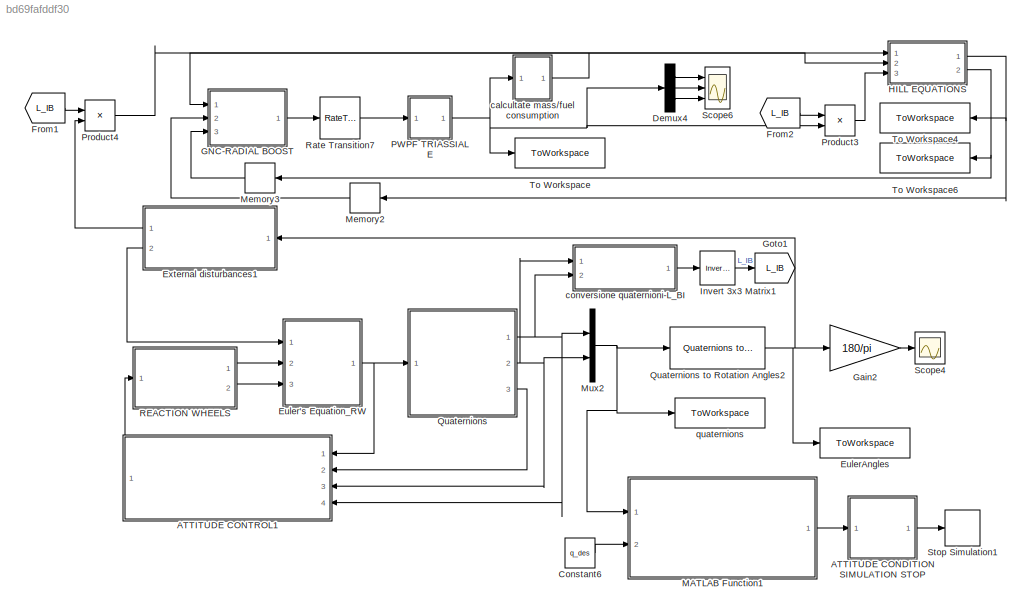
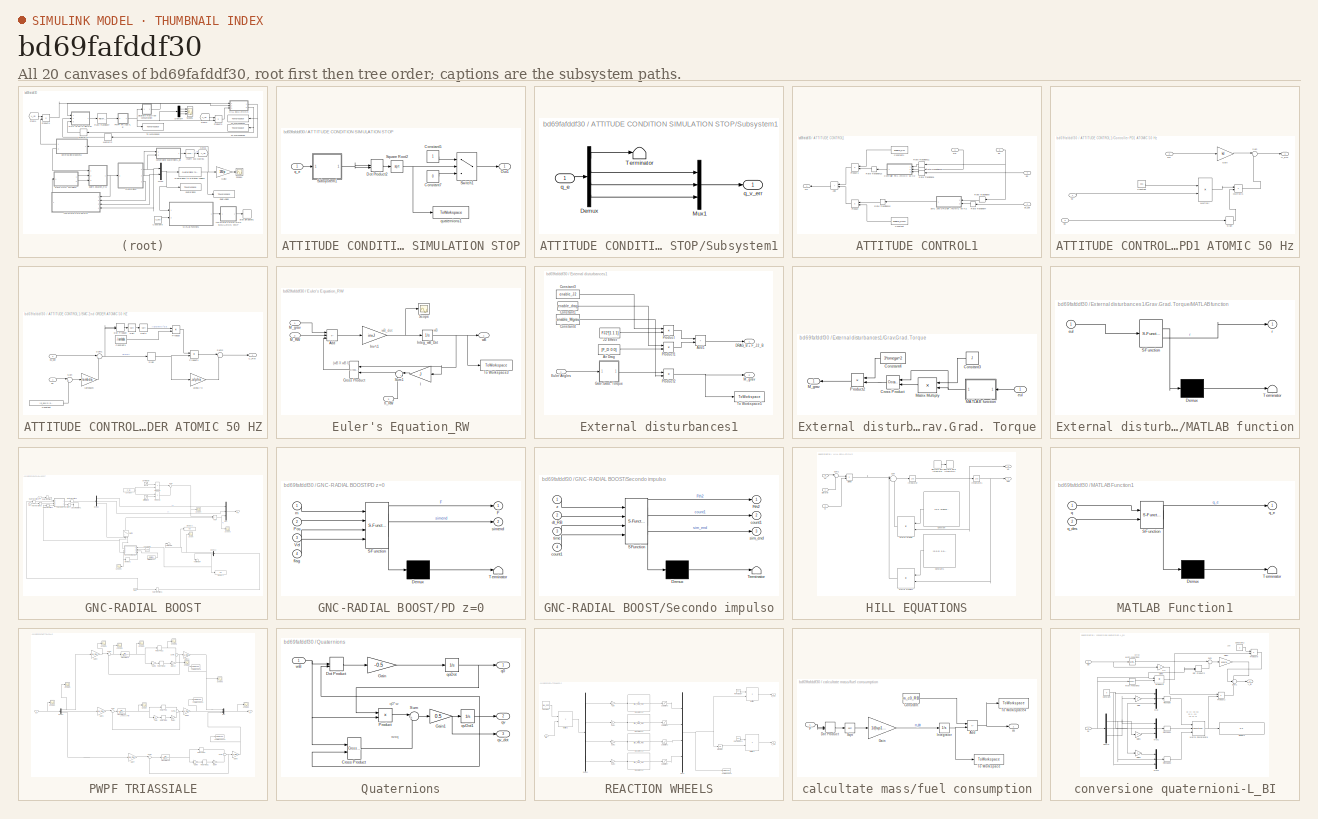
[diagram: thumbnail index - all 20 canvases of the model, root first then tree order]
MODEL slx_bd69fafddf30
KIND model
CONFIG AbsTol = auto
CONFIG EnableMultiTasking = off
CONFIG FixedStep = Dt
CONFIG MaxStep = auto
CONFIG MinStep = auto
CONFIG RelTol = 1e-3
CONFIG SampleTimeConstraint = Unconstrained
CONFIG SolverName = ode4
CONFIG StartTime = 0.0
CONFIG StopTime = 10000
BLOCK [SubSystem] ATTITUDE CONDITION SIMULATION STOP
  Ports = [1, 1]
  RequestExecContextInheritance = off
BLOCK [Constant] ATTITUDE CONDITION SIMULATION STOP/Constant5
BLOCK [Constant] ATTITUDE CONDITION SIMULATION STOP/Constant7
  Value = 0
BLOCK [DotProduct] ATTITUDE CONDITION SIMULATION STOP/Dot Product2
  OutDataTypeStr = Inherit: Inherit via internal rule
BLOCK [Outport] ATTITUDE CONDITION SIMULATION STOP/Out1
BLOCK [Sqrt] ATTITUDE CONDITION SIMULATION STOP/Square Root2
BLOCK [SubSystem] ATTITUDE CONDITION SIMULATION STOP/Subsystem1
  Ports = [1, 1]
  RequestExecContextInheritance = off
BLOCK [Demux] ATTITUDE CONDITION SIMULATION STOP/Subsystem1/Demux
  Ports = [1, 4]
BLOCK [Mux] ATTITUDE CONDITION SIMULATION STOP/Subsystem1/Mux1
  DisplayOption = bar
  Inputs = 3
  Ports = [3, 1]
BLOCK [Terminator] ATTITUDE CONDITION SIMULATION STOP/Subsystem1/Terminator
BLOCK [Inport] ATTITUDE CONDITION SIMULATION STOP/Subsystem1/q_e
BLOCK [Outport] ATTITUDE CONDITION SIMULATION STOP/Subsystem1/q_v_err
  VectorParamsAs1DForOutWhenUnconnected = off
BLOCK [Switch] ATTITUDE CONDITION SIMULATION STOP/Switch1
  Criteria = u2 > Threshold
  InputSameDT = off
  SaturateOnIntegerOverflow = off
  Threshold = e_ss
BLOCK [Inport] ATTITUDE CONDITION SIMULATION STOP/q_e
BLOCK [ToWorkspace] ATTITUDE CONDITION SIMULATION STOP/quaternions1
  FixptAsFi = on
  MaxDataPoints = inf
  Ports = [1]
  SampleTime = -1
  VariableName = normqerr
BLOCK [SubSystem] ATTITUDE CONTROL1
  Ports = [4, 1]
  RequestExecContextInheritance = off
BLOCK [Sum] ATTITUDE CONTROL1/Add
  IconShape = rectangular
  Ports = [2, 1]
BLOCK [Constant] ATTITUDE CONTROL1/Constant
  Value = enable_SMC
BLOCK [Constant] ATTITUDE CONTROL1/Constant1
  Value = enable_PD
BLOCK [SubSystem] ATTITUDE CONTROL1/Controller PD1 ATOMIC 50 Hz
  Ports = [3, 1]
  RequestExecContextInheritance = off
  SystemSampleTime = 0.02
  TreatAsAtomicUnit = on
BLOCK [Constant] ATTITUDE CONTROL1/Controller PD1 ATOMIC 50 Hz/Constant
  Value = kp1
BLOCK [Gain] ATTITUDE CONTROL1/Controller PD1 ATOMIC 50 Hz/Gain
  Gain = kd
  Multiplication = Matrix(K*u) (u vector)
BLOCK [Product] ATTITUDE CONTROL1/Controller PD1 ATOMIC 50 Hz/Multiply
  Multiplication = Matrix(*)
  Ports = [2, 1]
BLOCK [Product] ATTITUDE CONTROL1/Controller PD1 ATOMIC 50 Hz/Multiply1
  Ports = [2, 1]
BLOCK [Signum] ATTITUDE CONTROL1/Controller PD1 ATOMIC 50 Hz/Sign
BLOCK [Sum] ATTITUDE CONTROL1/Controller PD1 ATOMIC 50 Hz/Sum
  Inputs = |--
  Ports = [2, 1]
BLOCK [Outport] ATTITUDE CONTROL1/Controller PD1 ATOMIC 50 Hz/U_RW
  VectorParamsAs1DForOutWhenUnconnected = off
BLOCK [Inport] ATTITUDE CONTROL1/Controller PD1 ATOMIC 50 Hz/q0
  Port = 3
BLOCK [Inport] ATTITUDE CONTROL1/Controller PD1 ATOMIC 50 Hz/qv
BLOCK [Inport] ATTITUDE CONTROL1/Controller PD1 ATOMIC 50 Hz/wb
  Port = 2
BLOCK [Outport] ATTITUDE CONTROL1/Mc
BLOCK [Product] ATTITUDE CONTROL1/Product
  Ports = [2, 1]
BLOCK [Product] ATTITUDE CONTROL1/Product1
  Ports = [2, 1]
BLOCK [RateTransition] ATTITUDE CONTROL1/Rate Transition10
  InitialCondition = wb_0
  OutPortSampleTime = Dt_con
BLOCK [RateTransition] ATTITUDE CONTROL1/Rate Transition11
  InitialCondition = qv_0
  OutPortSampleTime = Dt_con
BLOCK [RateTransition] ATTITUDE CONTROL1/Rate Transition12
  OutPortSampleTime = Dt
BLOCK [RateTransition] ATTITUDE CONTROL1/Rate Transition13
  OutPortSampleTime = Dt
BLOCK [RateTransition] ATTITUDE CONTROL1/Rate Transition7
  InitialCondition = qv_0
  OutPortSampleTime = Dt_con
BLOCK [RateTransition] ATTITUDE CONTROL1/Rate Transition8
  InitialCondition = q0_0
  OutPortSampleTime = Dt_con
BLOCK [RateTransition] ATTITUDE CONTROL1/Rate Transition9
  InitialCondition = q0_0
  OutPortSampleTime = Dt_con
BLOCK [SubSystem] ATTITUDE CONTROL1/SMC 2nd ORDER ATOMIC 50 HZ
  Ports = [2, 1]
  RequestExecContextInheritance = off
  SystemSampleTime = 0.02
  TreatAsAtomicUnit = on
BLOCK [Constant] ATTITUDE CONTROL1/SMC 2nd ORDER ATOMIC 50 HZ/Constant
  Value = [q_des(2);q_des(3);q_des(4)]
BLOCK [Constant] ATTITUDE CONTROL1/SMC 2nd ORDER ATOMIC 50 HZ/Constant1
  Value = -lambda
BLOCK [DotProduct] ATTITUDE CONTROL1/SMC 2nd ORDER ATOMIC 50 HZ/Dot Product
  OutDataTypeStr = Inherit: Inherit via internal rule
BLOCK [Product] ATTITUDE CONTROL1/SMC 2nd ORDER ATOMIC 50 HZ/Product
  Ports = [2, 1]
BLOCK [Product] ATTITUDE CONTROL1/SMC 2nd ORDER ATOMIC 50 HZ/Product1
  Ports = [2, 1]
BLOCK [Signum] ATTITUDE CONTROL1/SMC 2nd ORDER ATOMIC 50 HZ/Sign
BLOCK [Sqrt] ATTITUDE CONTROL1/SMC 2nd ORDER ATOMIC 50 HZ/Sqrt
BLOCK [Sqrt] ATTITUDE CONTROL1/SMC 2nd ORDER ATOMIC 50 HZ/Sqrt1
BLOCK [Sum] ATTITUDE CONTROL1/SMC 2nd ORDER ATOMIC 50 HZ/Sum
  Inputs = |+-
  Ports = [2, 1]
BLOCK [Sum] ATTITUDE CONTROL1/SMC 2nd ORDER ATOMIC 50 HZ/Sum1
  Inputs = |++
  Ports = [2, 1]
BLOCK [Sum] ATTITUDE CONTROL1/SMC 2nd ORDER ATOMIC 50 HZ/Sum2
  Inputs = |++
  Ports = [2, 1]
BLOCK [Outport] ATTITUDE CONTROL1/SMC 2nd ORDER ATOMIC 50 HZ/U_RW
BLOCK [Gain] ATTITUDE CONTROL1/SMC 2nd ORDER ATOMIC 50 HZ/alpha > 0
  Gain = -alpha
BLOCK [Gain] ATTITUDE CONTROL1/SMC 2nd ORDER ATOMIC 50 HZ/lambda>0
  Gain = lambda
BLOCK [Inport] ATTITUDE CONTROL1/SMC 2nd ORDER ATOMIC 50 HZ/qv
BLOCK [Inport] ATTITUDE CONTROL1/SMC 2nd ORDER ATOMIC 50 HZ/qv_dot
  Port = 2
BLOCK [Inport] ATTITUDE CONTROL1/q0
  Port = 4
BLOCK [Inport] ATTITUDE CONTROL1/qv
  Port = 3
BLOCK [Inport] ATTITUDE CONTROL1/qv_dot
  Port = 2
BLOCK [Inport] ATTITUDE CONTROL1/wb
BLOCK [Constant] Constant6
  Value = q_des
BLOCK [Demux] Demux4
  Outputs = 3
  Ports = [1, 3]
BLOCK [SubSystem] Euler's Equation_RW
  Ports = [3, 1]
  RequestExecContextInheritance = off
BLOCK [Sum] Euler's Equation_RW/Add
  IconShape = rectangular
  Inputs = +--
  Ports = [3, 1]
BLOCK [Reference] Euler's Equation_RW/Cross Product  REF=vrlib/Utilities/Cross Product
  Ports = [2, 1]
  SourceBlock = vrlib/Utilities/Cross Product
  SourceProductBaseCode = SL
  SourceType = Cross Product
BLOCK [Gain] Euler's Equation_RW/I
  Gain = J
  Multiplication = Matrix(K*u)
BLOCK [Integrator] Euler's Equation_RW/Integ_wB_Dot
  InitialCondition = wb_0
  Ports = [1, 1]
BLOCK [Gain] Euler's Equation_RW/Inv^-1
  Gain = invJ
  Multiplication = Matrix(K*u)
BLOCK [Inport] Euler's Equation_RW/M_RW
  Port = 2
BLOCK [Inport] Euler's Equation_RW/M_grav
BLOCK [Scope] Euler's Equation_RW/Scope
  Floating = off
  NumInputPorts = 1
  Ports = [1]
  ScopeSpecificationString = Simulink.scopes.TimeScopeBlockCfg('CurrentConfiguration', extmgr.ConfigurationSet(extmgr.Configuration('Core','General UI',true),extmgr.Configuration('Core','Source UI',true),extmgr.Configuration('Sources','WiredSimulink',true,'DataLoggingVariableName','ScopeData1'),extmgr.Configuration('Visuals','Time Domain',true,'SerializedDisplays',{struct('MinYLimReal','-0.0875','MaxYLimReal','0.0838','YLabel...<+1412ch>
BLOCK [Sum] Euler's Equation_RW/Sum1
  Inputs = |++
  NameLocation = top
  Ports = [2, 1]
BLOCK [ToWorkspace] Euler's Equation_RW/To Workspace3
  FixptAsFi = on
  MaxDataPoints = inf
  Ports = [1]
  SampleTime = -1
  VariableName = wb
BLOCK [Inport] Euler's Equation_RW/h_RW
  Port = 3
BLOCK [Outport] Euler's Equation_RW/wB
  VectorParamsAs1DForOutWhenUnconnected = off
BLOCK [ToWorkspace] EulerAngles
  FixptAsFi = on
  MaxDataPoints = inf
  Ports = [1]
  SampleTime = -1
  VariableName = EulerAngles
BLOCK [SubSystem] External disturbances1
  Ports = [1, 2]
  RequestExecContextInheritance = off
BLOCK [Sum] External disturbances1/Add1
  IconShape = rectangular
  Ports = [2, 1]
BLOCK [Constant] External disturbances1/Air Drag
  Value = [F_D 0 0]
BLOCK [Constant] External disturbances1/Constant1
  Value = enable_drag
BLOCK [Constant] External disturbances1/Constant3
  Value = enable_J2
BLOCK [Constant] External disturbances1/Constant4
  Value = enable_Mgrav
BLOCK [Outport] External disturbances1/DRAG_B + F_J2_B
BLOCK [Inport] External disturbances1/Euler Angles
BLOCK [SubSystem] External disturbances1/Grav.Grad. Torque
  Ports = [1, 1]
  RequestExecContextInheritance = off
BLOCK [Constant] External disturbances1/Grav.Grad. Torque/Constant3
  Value = J
BLOCK [Constant] External disturbances1/Grav.Grad. Torque/Constant4
  Value = 3*omega^2
BLOCK [Reference] External disturbances1/Grav.Grad. Torque/Cross Product  REF=vrlib/Utilities/Cross Product
  Ports = [2, 1]
  SourceBlock = vrlib/Utilities/Cross Product
  SourceProductBaseCode = SL
  SourceType = Cross Product
BLOCK [SubSystem] External disturbances1/Grav.Grad. Torque/MATLAB function
  ErrorFcn = Stateflow.Translate.translate
  PermitHierarchicalResolution = ExplicitOnly
  Ports = [1, 1]
  RequestExecContextInheritance = off
  SFBlockType = MATLAB Function
  TreatAsAtomicUnit = on
BLOCK [Demux] External disturbances1/Grav.Grad. Torque/MATLAB function/ Demux 
  Outputs = 1
  Ports = [1, 1]
BLOCK [S-Function] External disturbances1/Grav.Grad. Torque/MATLAB function/ SFunction 
  EnableBusSupport = on
  FunctionName = sf_sfun
  PortCounts = [1 2]
  Ports = [1, 2]
  SFcnIsStateOwnerBlock = off
  SFunctionDeploymentMode = off
  Tag = Stateflow S-Function 1
BLOCK [Terminator] External disturbances1/Grav.Grad. Torque/MATLAB function/ Terminator 
BLOCK [Inport] External disturbances1/Grav.Grad. Torque/MATLAB function/eul
BLOCK [Outport] External disturbances1/Grav.Grad. Torque/MATLAB function/r
BLOCK [Outport] External disturbances1/Grav.Grad. Torque/M_grav
BLOCK [Product] External disturbances1/Grav.Grad. Torque/Matrix Multiply
  Multiplication = Matrix(*)
  Ports = [2, 1]
BLOCK [Product] External disturbances1/Grav.Grad. Torque/Product2
  Ports = [2, 1]
BLOCK [Inport] External disturbances1/Grav.Grad. Torque/eul
BLOCK [Constant] External disturbances1/J2 Effect
  Value = FJ2*[1 1 1]
BLOCK [Outport] External disturbances1/M_grav
  Port = 2
BLOCK [Product] External disturbances1/Product
  Ports = [2, 1]
BLOCK [Product] External disturbances1/Product1
  Ports = [2, 1]
BLOCK [Product] External disturbances1/Product2
  Ports = [2, 1]
BLOCK [ToWorkspace] External disturbances1/To Workspace5
  FixptAsFi = on
  MaxDataPoints = inf
  Ports = [1]
  SampleTime = -1
  VariableName = M_grav
BLOCK [From] From1
  GotoTag = L_IB
BLOCK [From] From2
  GotoTag = L_IB
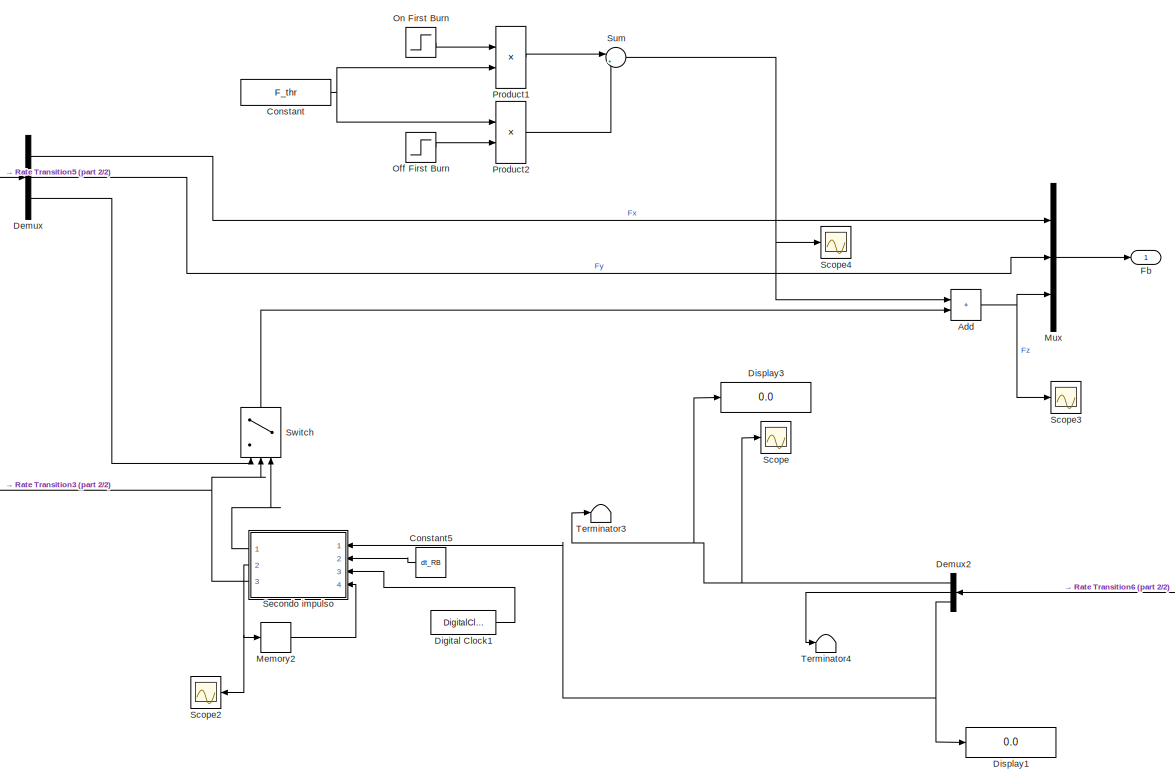
[diagram: GNC-RADIAL BOOST - part 1/2, center side, full height]
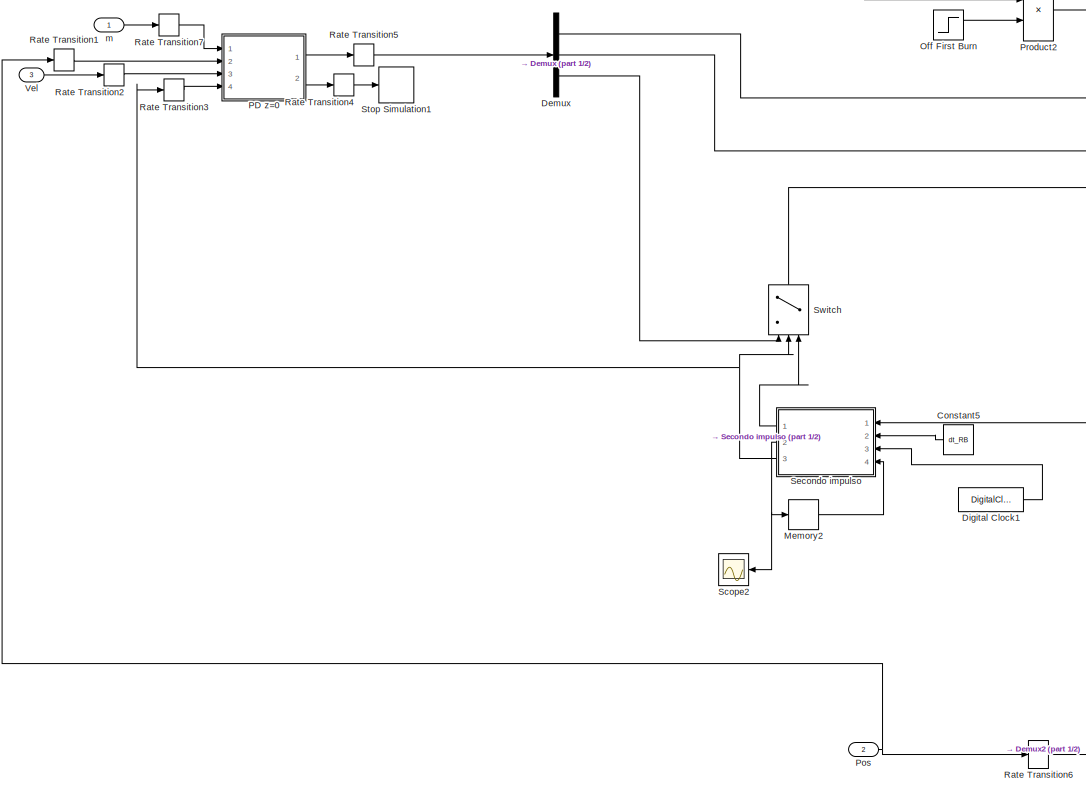
[diagram: GNC-RADIAL BOOST - part 2/2, left side, full height]
BLOCK [SubSystem] GNC-RADIAL BOOST
  Ports = [3, 1]
  RequestExecContextInheritance = off
BLOCK [Sum] GNC-RADIAL BOOST/Add
  IconShape = rectangular
  Ports = [2, 1]
BLOCK [Constant] GNC-RADIAL BOOST/Constant
  Value = F_thr
BLOCK [Constant] GNC-RADIAL BOOST/Constant5
  Value = dt_RB
BLOCK [Demux] GNC-RADIAL BOOST/Demux
  Outputs = 3
  Ports = [1, 3]
BLOCK [Demux] GNC-RADIAL BOOST/Demux2
  Outputs = 3
  Ports = [1, 3]
BLOCK [DigitalClock] GNC-RADIAL BOOST/Digital Clock1
BLOCK [Display] GNC-RADIAL BOOST/Display1
  Decimation = 1
  Format = long
  Ports = [1]
BLOCK [Display] GNC-RADIAL BOOST/Display3
  Decimation = 1
  Format = long
  Ports = [1]
BLOCK [Outport] GNC-RADIAL BOOST/Fb
BLOCK [Memory] GNC-RADIAL BOOST/Memory2
  InheritSampleTime = on
BLOCK [Mux] GNC-RADIAL BOOST/Mux
  DisplayOption = bar
  Inputs = 3
  Ports = [3, 1]
BLOCK [Step] GNC-RADIAL BOOST/Off First Burn
  After = +1
  SampleTime = 1
  Time = dt_RB
BLOCK [Step] GNC-RADIAL BOOST/On First Burn
  SampleTime = 1
  Time = 0
BLOCK [SubSystem] GNC-RADIAL BOOST/PD z=0
  ErrorFcn = Stateflow.Translate.translate
  PermitHierarchicalResolution = ExplicitOnly
  Ports = [4, 2]
  RequestExecContextInheritance = off
  SFBlockType = MATLAB Function
  TreatAsAtomicUnit = on
BLOCK [Demux] GNC-RADIAL BOOST/PD z=0/ Demux 
  Outputs = 1
  Ports = [1, 1]
BLOCK [S-Function] GNC-RADIAL BOOST/PD z=0/ SFunction 
  EnableBusSupport = on
  FunctionName = sf_sfun
  PortCounts = [4 3]
  Ports = [4, 3]
  SFcnIsStateOwnerBlock = off
  SFunctionDeploymentMode = off
  Tag = Stateflow S-Function 3
BLOCK [Terminator] GNC-RADIAL BOOST/PD z=0/ Terminator 
BLOCK [Outport] GNC-RADIAL BOOST/PD z=0/F
BLOCK [Inport] GNC-RADIAL BOOST/PD z=0/Pos
  Port = 2
BLOCK [Inport] GNC-RADIAL BOOST/PD z=0/Vel
  Port = 3
BLOCK [Inport] GNC-RADIAL BOOST/PD z=0/flag
  Port = 4
BLOCK [Inport] GNC-RADIAL BOOST/PD z=0/m
BLOCK [Outport] GNC-RADIAL BOOST/PD z=0/simend
  Port = 2
BLOCK [Inport] GNC-RADIAL BOOST/Pos
  Port = 2
BLOCK [Product] GNC-RADIAL BOOST/Product1
  Ports = [2, 1]
BLOCK [Product] GNC-RADIAL BOOST/Product2
  Ports = [2, 1]
BLOCK [RateTransition] GNC-RADIAL BOOST/Rate Transition1
  InitialCondition = Pos0
  OutPortSampleTime = Dt_con
BLOCK [RateTransition] GNC-RADIAL BOOST/Rate Transition2
  InitialCondition = Vel0
  OutPortSampleTime = Dt_con
BLOCK [RateTransition] GNC-RADIAL BOOST/Rate Transition3
  OutPortSampleTime = Dt_con
BLOCK [RateTransition] GNC-RADIAL BOOST/Rate Transition4
  OutPortSampleTime = Dt_guid
BLOCK [RateTransition] GNC-RADIAL BOOST/Rate Transition5
  OutPortSampleTime = Dt_guid
BLOCK [RateTransition] GNC-RADIAL BOOST/Rate Transition6
  InitialCondition = Pos0
  NameLocation = top
  OutPortSampleTime = Dt_guid
BLOCK [RateTransition] GNC-RADIAL BOOST/Rate Transition7
  InitialCondition = m_c0_RB
  OutPortSampleTime = Dt_con
BLOCK [Scope] GNC-RADIAL BOOST/Scope
  Floating = off
  NumInputPorts = 1
  Ports = [1]
  ScopeSpecificationString = Simulink.scopes.TimeScopeBlockCfg('CurrentConfiguration', extmgr.ConfigurationSet(extmgr.Configuration('Core','General UI',true),extmgr.Configuration('Core','Source UI',true),extmgr.Configuration('Sources','WiredSimulink',true,'DataLoggingVariableName','ScopeData1'),extmgr.Configuration('Visuals','Time Domain',true,'SerializedDisplays',{struct('MinYLimReal','-3313.41291','MaxYLimReal','-180.90321'...<+1445ch>
BLOCK [Scope] GNC-RADIAL BOOST/Scope2
  Floating = off
  NumInputPorts = 1
  Ports = [1]
  ScopeSpecificationString = Simulink.scopes.TimeScopeBlockCfg('CurrentConfiguration', extmgr.ConfigurationSet(extmgr.Configuration('Core','General UI',true),extmgr.Configuration('Core','Source UI',true),extmgr.Configuration('Sources','WiredSimulink',true,'DataLoggingVariableName','ScopeData2'),extmgr.Configuration('Visuals','Time Domain',true,'SerializedDisplays',{struct('MinYLimReal','-0.08071','MaxYLimReal','0.1236','YLabe...<+1397ch>
BLOCK [Scope] GNC-RADIAL BOOST/Scope3
  Floating = off
  NumInputPorts = 1
  Ports = [1]
  ScopeSpecificationString = Simulink.scopes.TimeScopeBlockCfg('CurrentConfiguration', extmgr.ConfigurationSet(extmgr.Configuration('Core','General UI',true),extmgr.Configuration('Core','Source UI',true),extmgr.Configuration('Sources','WiredSimulink',true,'DataLoggingVariableName','ScopeData3'),extmgr.Configuration('Visuals','Time Domain',true,'SerializedDisplays',{struct('MinYLimReal','-0.47853','MaxYLimReal','2.82256','YLab...<+1380ch>
BLOCK [Scope] GNC-RADIAL BOOST/Scope4
  Floating = off
  NumInputPorts = 1
  Ports = [1]
  ScopeSpecificationString = Simulink.scopes.TimeScopeBlockCfg('CurrentConfiguration', extmgr.ConfigurationSet(extmgr.Configuration('Core','General UI',true),extmgr.Configuration('Core','Source UI',true),extmgr.Configuration('Sources','WiredSimulink',true,'DataLoggingVariableName','ScopeData4'),extmgr.Configuration('Visuals','Time Domain',true,'SerializedDisplays',{struct('MinYLimReal','-0.25','MaxYLimReal','2.25','YLabelReal...<+1367ch>
BLOCK [SubSystem] GNC-RADIAL BOOST/Secondo impulso
  ErrorFcn = Stateflow.Translate.translate
  PermitHierarchicalResolution = ExplicitOnly
  Ports = [4, 3]
  RequestExecContextInheritance = off
  SFBlockType = MATLAB Function
  TreatAsAtomicUnit = on
BLOCK [Demux] GNC-RADIAL BOOST/Secondo impulso/ Demux 
  Outputs = 1
  Ports = [1, 1]
BLOCK [S-Function] GNC-RADIAL BOOST/Secondo impulso/ SFunction 
  EnableBusSupport = on
  FunctionName = sf_sfun
  PortCounts = [4 4]
  Ports = [4, 4]
  SFcnIsStateOwnerBlock = off
  SFunctionDeploymentMode = off
  Tag = Stateflow S-Function 2
BLOCK [Terminator] GNC-RADIAL BOOST/Secondo impulso/ Terminator 
BLOCK [Outport] GNC-RADIAL BOOST/Secondo impulso/Fth2
BLOCK [Outport] GNC-RADIAL BOOST/Secondo impulso/count1
  Port = 2
BLOCK [Inport] GNC-RADIAL BOOST/Secondo impulso/count1 
  Port = 4
BLOCK [Inport] GNC-RADIAL BOOST/Secondo impulso/dt_RB
  Port = 2
BLOCK [Outport] GNC-RADIAL BOOST/Secondo impulso/sim_end
  Port = 3
BLOCK [Inport] GNC-RADIAL BOOST/Secondo impulso/time
  Port = 3
BLOCK [Inport] GNC-RADIAL BOOST/Secondo impulso/z
BLOCK [Stop] GNC-RADIAL BOOST/Stop Simulation1
BLOCK [Sum] GNC-RADIAL BOOST/Sum
  Inputs = |+-
  Ports = [2, 1]
BLOCK [Switch] GNC-RADIAL BOOST/Switch
  Criteria = u2 > Threshold
  InputSameDT = off
  NameLocation = right
  SaturateOnIntegerOverflow = off
BLOCK [Terminator] GNC-RADIAL BOOST/Terminator3
BLOCK [Terminator] GNC-RADIAL BOOST/Terminator4
BLOCK [Inport] GNC-RADIAL BOOST/Vel
  Port = 3
BLOCK [Inport] GNC-RADIAL BOOST/m
BLOCK [Gain] Gain2
  Gain = 180/pi
BLOCK [Goto] Goto1
  GotoTag = L_IB
BLOCK [SubSystem] HILL EQUATIONS
  Ports = [3, 2]
  RequestExecContextInheritance = off
BLOCK [Constant] HILL EQUATIONS/Constant
  Value = [0 0 -2*omega; 0 0 0; 2*omega 0 0]
BLOCK [Constant] HILL EQUATIONS/Constant1
  Value = [0 0 0; 0 omega^2 0; 0 0 -3*omega^2]
BLOCK [DiscreteIntegrator] HILL EQUATIONS/Discrete-Time Integrator
  Commented = on
  ICPrevOutput = DiscIntNeverNeededParam
  ICPrevScaledInput = DiscIntNeverNeededParam
  InitialCondition = Vel0
  InitialConditionSetting = Auto
  Ports = [1, 1]
  SampleTime = -1
BLOCK [DiscreteIntegrator] HILL EQUATIONS/Discrete-Time Integrator1
  Commented = on
  ICPrevOutput = DiscIntNeverNeededParam
  ICPrevScaledInput = DiscIntNeverNeededParam
  InitialCondition = Pos0
  InitialConditionSetting = Auto
  Ports = [1, 1]
  SampleTime = -1
BLOCK [Inport] HILL EQUATIONS/Disturbi
BLOCK [Product] HILL EQUATIONS/Divide
  Inputs = */
  Ports = [2, 1]
BLOCK [Inport] HILL EQUATIONS/Fc
  Port = 3
BLOCK [Integrator] HILL EQUATIONS/Integrator
  InitialCondition = Vel0
  Ports = [1, 1]
BLOCK [Integrator] HILL EQUATIONS/Integrator1
  InitialCondition = Pos0
  Ports = [1, 1]
BLOCK [Product] HILL EQUATIONS/Matrix Multiply
  Multiplication = Matrix(*)
  Ports = [2, 1]
BLOCK [Product] HILL EQUATIONS/Matrix Multiply1
  Multiplication = Matrix(*)
  Ports = [2, 1]
BLOCK [Outport] HILL EQUATIONS/Pos
BLOCK [Sum] HILL EQUATIONS/Sum
  Inputs = |+--
  Ports = [3, 1]
BLOCK [Sum] HILL EQUATIONS/Sum1
  Inputs = |++
  Ports = [2, 1]
BLOCK [Outport] HILL EQUATIONS/Vel
  Port = 2
BLOCK [Inport] HILL EQUATIONS/m
  Port = 2
BLOCK [Reference] Invert 3x3 Matrix1  REF=aerolibutil/Invert 
3x3 Matrix
  Ports = [1, 1]
  SourceBlock = aerolibutil/Invert \n3x3 Matrix
  SourceProductBaseCode = AE
  SourceType = Invert 3x3 Matrix
BLOCK [SubSystem] MATLAB Function1
  ErrorFcn = Stateflow.Translate.translate
  PermitHierarchicalResolution = ExplicitOnly
  Ports = [2, 1]
  RequestExecContextInheritance = off
  SFBlockType = MATLAB Function
  TreatAsAtomicUnit = on
BLOCK [Demux] MATLAB Function1/ Demux 
  Outputs = 1
  Ports = [1, 1]
BLOCK [S-Function] MATLAB Function1/ SFunction 
  EnableBusSupport = on
  FunctionName = sf_sfun
  PortCounts = [2 2]
  Ports = [2, 2]
  SFcnIsStateOwnerBlock = off
  SFunctionDeploymentMode = off
  Tag = Stateflow S-Function 11
BLOCK [Terminator] MATLAB Function1/ Terminator 
BLOCK [Inport] MATLAB Function1/q
BLOCK [Inport] MATLAB Function1/q_des
  Port = 2
BLOCK [Outport] MATLAB Function1/q_e
  VectorParamsAs1DForOutWhenUnconnected = off
BLOCK [Memory] Memory2
  InitialCondition = Pos0
  NameLocation = top
BLOCK [Memory] Memory3
  InitialCondition = Vel0
  NameLocation = top
BLOCK [Mux] Mux2
  DisplayOption = bar
  Inputs = 2
  Ports = [2, 1]
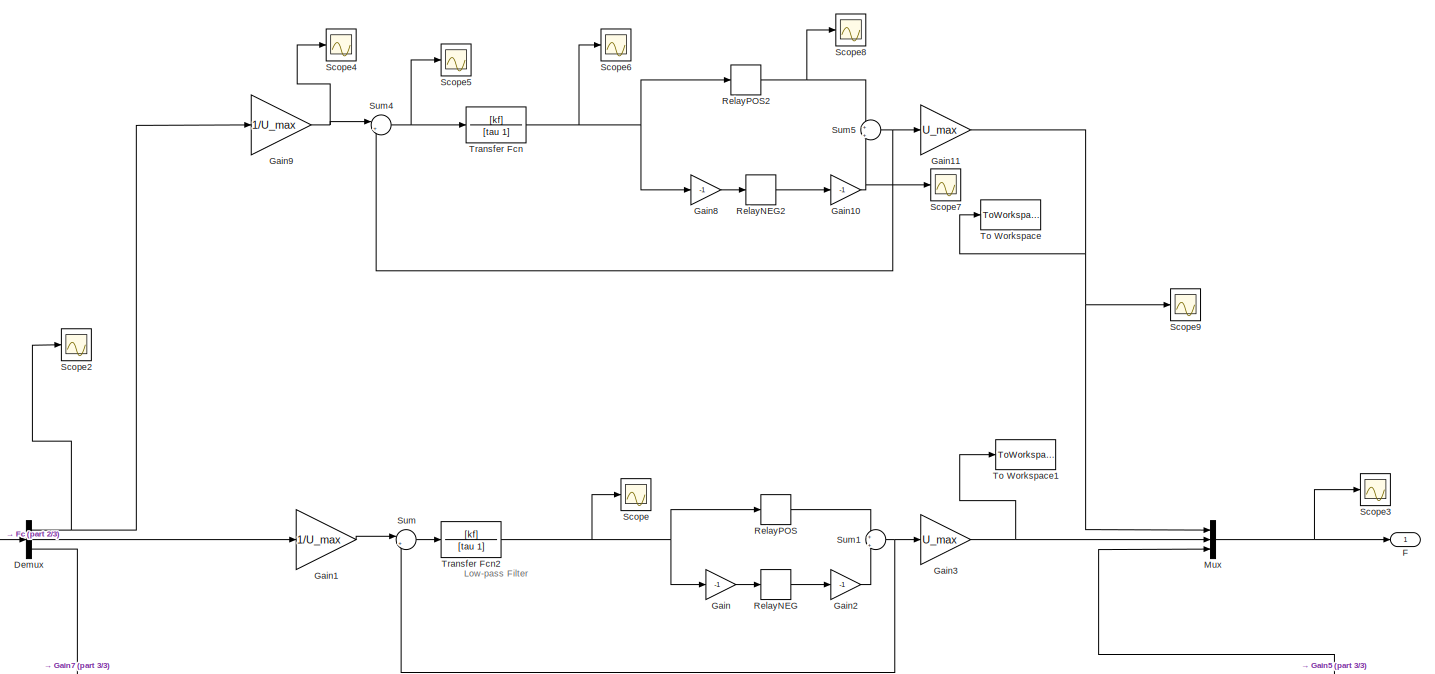
[diagram: PWPF TRIASSIALE - part 1/3, full width, middle band]
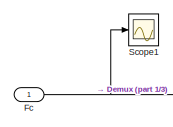
[diagram: PWPF TRIASSIALE - part 2/3, middle left region]
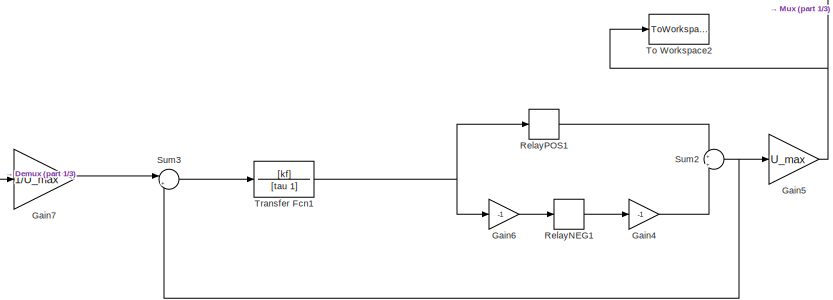
[diagram: PWPF TRIASSIALE - part 3/3, bottom right region]
BLOCK [SubSystem] PWPF TRIASSIALE
  Ports = [1, 1]
  RequestExecContextInheritance = off
BLOCK [Demux] PWPF TRIASSIALE/Demux
  Outputs = 3
  Ports = [1, 3]
BLOCK [Outport] PWPF TRIASSIALE/F
  VectorParamsAs1DForOutWhenUnconnected = off
BLOCK [Inport] PWPF TRIASSIALE/Fc
BLOCK [Gain] PWPF TRIASSIALE/Gain
  Gain = -1
BLOCK [Gain] PWPF TRIASSIALE/Gain1
  Gain = 1/U_max
BLOCK [Gain] PWPF TRIASSIALE/Gain10
  Gain = -1
BLOCK [Gain] PWPF TRIASSIALE/Gain11
  Gain = U_max
BLOCK [Gain] PWPF TRIASSIALE/Gain2
  Gain = -1
BLOCK [Gain] PWPF TRIASSIALE/Gain3
  Gain = U_max
BLOCK [Gain] PWPF TRIASSIALE/Gain4
  Gain = -1
BLOCK [Gain] PWPF TRIASSIALE/Gain5
  Gain = U_max
BLOCK [Gain] PWPF TRIASSIALE/Gain6
  Gain = -1
BLOCK [Gain] PWPF TRIASSIALE/Gain7
  Gain = 1/U_max
BLOCK [Gain] PWPF TRIASSIALE/Gain8
  Gain = -1
BLOCK [Gain] PWPF TRIASSIALE/Gain9
  Gain = 1/U_max
BLOCK [Mux] PWPF TRIASSIALE/Mux
  DisplayOption = bar
  Inputs = 3
  Ports = [3, 1]
BLOCK [Relay] PWPF TRIASSIALE/RelayNEG
  OffSwitchValue = U_off
  OnSwitchValue = U_on
BLOCK [Relay] PWPF TRIASSIALE/RelayNEG1
  OffSwitchValue = U_off
  OnSwitchValue = U_on
BLOCK [Relay] PWPF TRIASSIALE/RelayNEG2
  OffSwitchValue = U_off
  OnSwitchValue = U_on
BLOCK [Relay] PWPF TRIASSIALE/RelayPOS
  OffSwitchValue = U_off
  OnSwitchValue = U_on
BLOCK [Relay] PWPF TRIASSIALE/RelayPOS1
  OffSwitchValue = U_off
  OnSwitchValue = U_on
BLOCK [Relay] PWPF TRIASSIALE/RelayPOS2
  OffSwitchValue = U_off
  OnSwitchValue = U_on
BLOCK [Scope] PWPF TRIASSIALE/Scope
  Floating = off
  NumInputPorts = 1
  Ports = [1]
  ScopeSpecificationString = Simulink.scopes.TimeScopeBlockCfg('CurrentConfiguration', extmgr.ConfigurationSet(extmgr.Configuration('Core','General UI',true),extmgr.Configuration('Core','Source UI',true),extmgr.Configuration('Sources','WiredSimulink',true),extmgr.Configuration('Visuals','Time Domain',true,'SerializedDisplays',{struct('MinYLimReal','-8.82672','MaxYLimReal','2.10991','YLabelReal','','MinYLimMag','0.00000','MaxY...<+1421ch>
BLOCK [Scope] PWPF TRIASSIALE/Scope1
  Floating = off
  NumInputPorts = 1
  Ports = [1]
  ScopeSpecificationString = Simulink.scopes.TimeScopeBlockCfg('CurrentConfiguration', extmgr.ConfigurationSet(extmgr.Configuration('Core','General UI',true),extmgr.Configuration('Core','Source UI',true),extmgr.Configuration('Sources','WiredSimulink',true,'DataLoggingVariableName','ScopeData3'),extmgr.Configuration('Visuals','Time Domain',true,'SerializedDisplays',{struct('MinYLimReal','-15.99185','MaxYLimReal','4.80923','YLa...<+1400ch>
BLOCK [Scope] PWPF TRIASSIALE/Scope2
  Floating = off
  NumInputPorts = 1
  Ports = [1]
  ScopeSpecificationString = Simulink.scopes.TimeScopeBlockCfg('CurrentConfiguration', extmgr.ConfigurationSet(extmgr.Configuration('Core','General UI',true),extmgr.Configuration('Core','Source UI',true),extmgr.Configuration('Sources','WiredSimulink',true,'DataLoggingVariableName','ScopeData4'),extmgr.Configuration('Visuals','Time Domain',true,'SerializedDisplays',{struct('MinYLimReal','-9.16261','MaxYLimReal','3.24029','YLab...<+1366ch>
BLOCK [Scope] PWPF TRIASSIALE/Scope3
  Floating = off
  NumInputPorts = 1
  Ports = [1]
  ScopeSpecificationString = Simulink.scopes.TimeScopeBlockCfg('CurrentConfiguration', extmgr.ConfigurationSet(extmgr.Configuration('Core','General UI',true),extmgr.Configuration('Core','Source UI',true),extmgr.Configuration('Sources','WiredSimulink',true,'DataLoggingVariableName','ScopeData6'),extmgr.Configuration('Visuals','Time Domain',true,'SerializedDisplays',{struct('MinYLimReal','-2.5','MaxYLimReal','2.5','YLabelReal',...<+1357ch>
BLOCK [Scope] PWPF TRIASSIALE/Scope4
  Floating = off
  NumInputPorts = 1
  Ports = [1]
  ScopeSpecificationString = Simulink.scopes.TimeScopeBlockCfg('CurrentConfiguration', extmgr.ConfigurationSet(extmgr.Configuration('Core','General UI',true),extmgr.Configuration('Core','Source UI',true),extmgr.Configuration('Sources','WiredSimulink',true,'DataLoggingVariableName','ScopeData2'),extmgr.Configuration('Visuals','Time Domain',true,'SerializedDisplays',{struct('MinYLimReal','-0.51538','MaxYLimReal','0.71028','YLab...<+1416ch>
BLOCK [Scope] PWPF TRIASSIALE/Scope5
  Floating = off
  NumInputPorts = 1
  Ports = [1]
  ScopeSpecificationString = Simulink.scopes.TimeScopeBlockCfg('CurrentConfiguration', extmgr.ConfigurationSet(extmgr.Configuration('Core','General UI',true),extmgr.Configuration('Core','Source UI',true),extmgr.Configuration('Sources','WiredSimulink',true,'DataLoggingVariableName','ScopeData8'),extmgr.Configuration('Visuals','Time Domain',true,'SerializedDisplays',{struct('MinYLimReal','-1.71885','MaxYLimReal','1.10524','YLab...<+1382ch>
BLOCK [Scope] PWPF TRIASSIALE/Scope6
  Floating = off
  NumInputPorts = 1
  Ports = [1]
  ScopeSpecificationString = Simulink.scopes.TimeScopeBlockCfg('CurrentConfiguration', extmgr.ConfigurationSet(extmgr.Configuration('Core','General UI',true),extmgr.Configuration('Core','Source UI',true),extmgr.Configuration('Sources','WiredSimulink',true,'DataLoggingVariableName','ScopeData9'),extmgr.Configuration('Visuals','Time Domain',true,'SerializedDisplays',{struct('MinYLimReal','-1.30223','MaxYLimReal','1.17644','YLab...<+1390ch>
BLOCK [Scope] PWPF TRIASSIALE/Scope7
  Floating = off
  NumInputPorts = 1
  Ports = [1]
  ScopeSpecificationString = Simulink.scopes.TimeScopeBlockCfg('CurrentConfiguration', extmgr.ConfigurationSet(extmgr.Configuration('Core','General UI',true),extmgr.Configuration('Core','Source UI',true),extmgr.Configuration('Sources','WiredSimulink',true,'DataLoggingVariableName','ScopeData10'),extmgr.Configuration('Visuals','Time Domain',true,'SerializedDisplays',{struct('MinYLimReal','-1.125','MaxYLimReal','0.125','YLabelR...<+1354ch>
BLOCK [Scope] PWPF TRIASSIALE/Scope8
  Floating = off
  NumInputPorts = 1
  Ports = [1]
  ScopeSpecificationString = Simulink.scopes.TimeScopeBlockCfg('CurrentConfiguration', extmgr.ConfigurationSet(extmgr.Configuration('Core','General UI',true),extmgr.Configuration('Core','Source UI',true),extmgr.Configuration('Sources','WiredSimulink',true,'DataLoggingVariableName','ScopeData11'),extmgr.Configuration('Visuals','Time Domain',true,'SerializedDisplays',{struct('MinYLimReal','0.62799','MaxYLimReal','0.62817','YLab...<+1386ch>
BLOCK [Scope] PWPF TRIASSIALE/Scope9
  Floating = off
  NumInputPorts = 1
  Ports = [1]
  ScopeSpecificationString = Simulink.scopes.TimeScopeBlockCfg('CurrentConfiguration', extmgr.ConfigurationSet(extmgr.Configuration('Core','General UI',true),extmgr.Configuration('Core','Source UI',true),extmgr.Configuration('Sources','WiredSimulink',true,'DataLoggingVariableName','ScopeData12'),extmgr.Configuration('Visuals','Time Domain',true,'SerializedDisplays',{struct('MinYLimReal','-2.5','MaxYLimReal','2.5','YLabelReal'...<+1342ch>
BLOCK [Sum] PWPF TRIASSIALE/Sum
  Inputs = |+-
  Ports = [2, 1]
BLOCK [Sum] PWPF TRIASSIALE/Sum1
  Inputs = +|+
  Ports = [2, 1]
BLOCK [Sum] PWPF TRIASSIALE/Sum2
  Inputs = +|+
  Ports = [2, 1]
BLOCK [Sum] PWPF TRIASSIALE/Sum3
  Inputs = |+-
  Ports = [2, 1]
BLOCK [Sum] PWPF TRIASSIALE/Sum4
  Inputs = |+-
  Ports = [2, 1]
BLOCK [Sum] PWPF TRIASSIALE/Sum5
  Inputs = +|+
  Ports = [2, 1]
BLOCK [ToWorkspace] PWPF TRIASSIALE/To Workspace
  FixptAsFi = on
  MaxDataPoints = inf
  Ports = [1]
  SampleTime = -1
  VariableName = Mxc
BLOCK [ToWorkspace] PWPF TRIASSIALE/To Workspace1
  FixptAsFi = on
  MaxDataPoints = inf
  Ports = [1]
  SampleTime = -1
  VariableName = Myc
BLOCK [ToWorkspace] PWPF TRIASSIALE/To Workspace2
  FixptAsFi = on
  MaxDataPoints = inf
  Ports = [1]
  SampleTime = -1
  VariableName = Mzc
BLOCK [TransferFcn] PWPF TRIASSIALE/Transfer Fcn
  Denominator = [tau 1]
  Numerator = [kf]
BLOCK [TransferFcn] PWPF TRIASSIALE/Transfer Fcn1
  Denominator = [tau 1]
  Numerator = [kf]
BLOCK [TransferFcn] PWPF TRIASSIALE/Transfer Fcn2
  Denominator = [tau 1]
  Numerator = [kf]
BLOCK [Product] Product3
  Multiplication = Matrix(*)
  Ports = [2, 1]
BLOCK [Product] Product4
  Multiplication = Matrix(*)
  Ports = [2, 1]
BLOCK [SubSystem] Quaternions
  Ports = [1, 3]
  RequestExecContextInheritance = off
BLOCK [Reference] Quaternions to Rotation Angles2  REF=sharedtransform/Quaternions to Rotation Angles
  AttributesFormatString = Rotation Order: %<rotationOrder>
  Ports = [1, 1]
  SourceBlock = sharedtransform/Quaternions to Rotation Angles
  SourceProductBaseCode = AE,PW,MT,UV,VE,VP
  SourceType = Quat2Ang
BLOCK [Reference] Quaternions/Cross Product  REF=vrlib/Utilities/Cross Product
  Ports = [2, 1]
  SourceBlock = vrlib/Utilities/Cross Product
  SourceProductBaseCode = SL
  SourceType = Cross Product
BLOCK [DotProduct] Quaternions/Dot Product
  OutDataTypeStr = Inherit: Inherit via internal rule
BLOCK [Gain] Quaternions/Gain
  Gain = -0.5
  Multiplication = Matrix(K*u)
BLOCK [Gain] Quaternions/Gain1
  Gain = 0.5
  Multiplication = Matrix(K*u)
BLOCK [Product] Quaternions/Product
  Ports = [2, 1]
  RndMeth = Zero
BLOCK [Sum] Quaternions/Sum
  Inputs = |+-
  Ports = [2, 1]
BLOCK [Outport] Quaternions/q0
  VectorParamsAs1DForOutWhenUnconnected = off
BLOCK [Integrator] Quaternions/qoDot
  InitialCondition = q0_0
  Ports = [1, 1]
BLOCK [Outport] Quaternions/qv
  Port = 2
  VectorParamsAs1DForOutWhenUnconnected = off
BLOCK [Integrator] Quaternions/qvDot1
  InitialCondition = qv_0
  Ports = [1, 1]
BLOCK [Outport] Quaternions/qv_dot
  Port = 3
  VectorParamsAs1DForOutWhenUnconnected = off
BLOCK [Inport] Quaternions/wB
BLOCK [SubSystem] REACTION WHEELS
  Ports = [1, 2]
  RequestExecContextInheritance = off
BLOCK [Constant] REACTION WHEELS/Constant
  Value = INV_ZZZ
BLOCK [Demux] REACTION WHEELS/Demux
  Ports = [1, 4]
BLOCK [Gain] REACTION WHEELS/Gain
  Gain = -1
BLOCK [Gain] REACTION WHEELS/Gain1
  Gain = -1
BLOCK [Gain] REACTION WHEELS/Gain2
  Gain = -1
BLOCK [Gain] REACTION WHEELS/Gain3
  Gain = -1
BLOCK [Integrator] REACTION WHEELS/Integrator
  Ports = [1, 1]
BLOCK [Outport] REACTION WHEELS/M_RW
  VectorParamsAs1DForOutWhenUnconnected = off
BLOCK [Inport] REACTION WHEELS/Mc
BLOCK [Product] REACTION WHEELS/Multiply
  Multiplication = Matrix(*)
  Ports = [2, 1]
BLOCK [Product] REACTION WHEELS/Multiply1
  Multiplication = Matrix(*)
  Ports = [2, 1]
BLOCK [Product] REACTION WHEELS/Multiply2
  Multiplication = Matrix(*)
  Ports = [2, 1]
BLOCK [Mux] REACTION WHEELS/Mux2
  DisplayOption = bar
  Ports = [4, 1]
BLOCK [Constant] REACTION WHEELS/RW TO BODY
  Value = ZZZ
BLOCK [Constant] REACTION WHEELS/RW TO BODY1
  Value = ZZZ
BLOCK [Saturate] REACTION WHEELS/Saturation1
  LowerLimit = -gmax
  UpperLimit = gmax
BLOCK [Saturate] REACTION WHEELS/Saturation2
  LowerLimit = -gmax
  UpperLimit = gmax
BLOCK [Saturate] REACTION WHEELS/Saturation3
  LowerLimit = -gmax
  UpperLimit = gmax
BLOCK [Saturate] REACTION WHEELS/Saturation7
  LowerLimit = -gmax
  UpperLimit = gmax
BLOCK [ToWorkspace] REACTION WHEELS/To Workspace
  FixptAsFi = on
  MaxDataPoints = inf
  Ports = [1]
  SampleTime = -1
  VariableName = M_RWRW
BLOCK [TransferFcn] REACTION WHEELS/Transfer Fcn1
  Denominator = [tau_RW p_RW]
  Numerator = Kr
BLOCK [TransferFcn] REACTION WHEELS/Transfer Fcn2
  Denominator = [tau_RW p_RW]
  Numerator = Kr
BLOCK [TransferFcn] REACTION WHEELS/Transfer Fcn3
  Denominator = [tau_RW p_RW]
  Numerator = Kr
BLOCK [TransferFcn] REACTION WHEELS/Transfer Fcn4
  Denominator = [tau_RW p_RW]
  Numerator = Kr
BLOCK [Outport] REACTION WHEELS/h_RW 
  Port = 2
  VectorParamsAs1DForOutWhenUnconnected = off
BLOCK [RateTransition] Rate Transition7
  OutPortSampleTime = Dt
BLOCK [Scope] Scope4
  Floating = off
  NumInputPorts = 1
  Ports = [1]
  ScopeSpecificationString = Simulink.scopes.TimeScopeBlockCfg('CurrentConfiguration', extmgr.ConfigurationSet(extmgr.Configuration('Core','General UI',true),extmgr.Configuration('Core','Source UI',true),extmgr.Configuration('Sources','WiredSimulink',true,'DataLoggingVariableName','ScopeData1'),extmgr.Configuration('Visuals','Time Domain',true,'SerializedDisplays',{struct('MinYLimReal','-11.25','MaxYLimReal','101.25','YLabelR...<+1375ch>
BLOCK [Scope] Scope6
  Floating = off
  NumInputPorts = 3
  Ports = [3]
  ScopeSpecificationString = Simulink.scopes.TimeScopeBlockCfg('CurrentConfiguration', extmgr.ConfigurationSet(extmgr.Configuration('Core','General UI',true),extmgr.Configuration('Core','Source UI',true),extmgr.Configuration('Sources','WiredSimulink',true,'DataLoggingVariableName','ScopeData3'),extmgr.Configuration('Visuals','Time Domain',true,'SerializedDisplays',{struct('MinYLimReal','0.22661','MaxYLimReal','1.96889','YLabe...<+2708ch>
BLOCK [Stop] Stop Simulation1
BLOCK [ToWorkspace] To Workspace
  FixptAsFi = on
  MaxDataPoints = inf
  Ports = [1]
  SampleTime = -1
  VariableName = Fb
BLOCK [ToWorkspace] To Workspace4
  FixptAsFi = on
  MaxDataPoints = inf
  Ports = [1]
  SampleTime = -1
  Save2DSignal = 2-D array (concatenate along first dimension)
  VariableName = Pos
BLOCK [ToWorkspace] To Workspace6
  FixptAsFi = on
  MaxDataPoints = inf
  Ports = [1]
  SampleTime = -1
  Save2DSignal = 2-D array (concatenate along first dimension)
  VariableName = Vel
BLOCK [SubSystem] calcultate mass//fuel consumption
  Ports = [1, 1]
  RequestExecContextInheritance = off
BLOCK [Sum] calcultate mass//fuel consumption/Add
  IconShape = rectangular
  Inputs = +-
  Ports = [2, 1]
BLOCK [Constant] calcultate mass//fuel consumption/Constant
  Value = m_c0_RB
BLOCK [DotProduct] calcultate mass//fuel consumption/Dot Product
  OutDataTypeStr = Inherit: Inherit via internal rule
BLOCK [Inport] calcultate mass//fuel consumption/F
BLOCK [Gain] calcultate mass//fuel consumption/Gain
  Gain = 1/(Isp1*9.81)
BLOCK [Integrator] calcultate mass//fuel consumption/Integrator
  NameLocation = top
  Ports = [1, 1]
BLOCK [Sqrt] calcultate mass//fuel consumption/Sqrt
BLOCK [ToWorkspace] calcultate mass//fuel consumption/To Workspace
  FixptAsFi = on
  MaxDataPoints = inf
  Ports = [1]
  SampleTime = -1
  VariableName = mf
BLOCK [ToWorkspace] calcultate mass//fuel consumption/To Workspace4
  FixptAsFi = on
  MaxDataPoints = inf
  Ports = [1]
  SampleTime = -1
  VariableName = m
BLOCK [Outport] calcultate mass//fuel consumption/m
BLOCK [SubSystem] conversione quaternioni-L_BI
  Ports = [2, 1]
  RequestExecContextInheritance = off
BLOCK [Constant] conversione quaternioni-L_BI/Constant
  Value = 0
BLOCK [Constant] conversione quaternioni-L_BI/Constant2
  Value = 2
BLOCK [Demux] conversione quaternioni-L_BI/Demux
  Outputs = 3
  Ports = [1, 3]
BLOCK [Display] conversione quaternioni-L_BI/Display4
  Decimation = 1
  Ports = [1]
BLOCK [DotProduct] conversione quaternioni-L_BI/Dot Product2
  OutDataTypeStr = Inherit: Inherit via internal rule
BLOCK [Gain] conversione quaternioni-L_BI/Gain
  Gain = -1
BLOCK [Gain] conversione quaternioni-L_BI/Gain1
  Gain = -1
BLOCK [Gain] conversione quaternioni-L_BI/Gain2
  Gain = -1
BLOCK [Gain] conversione quaternioni-L_BI/Gain3
  Gain = 2
BLOCK [Gain] conversione quaternioni-L_BI/Gain4
  Gain = eye(3)
BLOCK [Outport] conversione quaternioni-L_BI/L_BI
  VectorParamsAs1DForOutWhenUnconnected = off
BLOCK [Math] conversione quaternioni-L_BI/Math Function2
  Operator = magnitude^2
  Ports = [1, 1]
  SignedPower = on
BLOCK [Math] conversione quaternioni-L_BI/Math Function3
  Operator = transpose
  Ports = [1, 1]
  SignedPower = on
BLOCK [Concatenate] conversione quaternioni-L_BI/Matrix Concatenate
  Mode = Multidimensional array
  NumInputs = 3
  Ports = [3, 1]
BLOCK [Mux] conversione quaternioni-L_BI/Mux
  DisplayOption = bar
  Inputs = 3
  Ports = [3, 1]
BLOCK [Mux] conversione quaternioni-L_BI/Mux1
  DisplayOption = bar
  Inputs = 3
  Ports = [3, 1]
BLOCK [Mux] conversione quaternioni-L_BI/Mux2
  DisplayOption = bar
  Inputs = 3
  Ports = [3, 1]
BLOCK [Product] conversione quaternioni-L_BI/Product2
  Ports = [2, 1]
  RndMeth = Zero
BLOCK [Product] conversione quaternioni-L_BI/Product5
  Multiplication = Matrix(*)
  Ports = [2, 1]
BLOCK [Product] conversione quaternioni-L_BI/Product6
  Ports = [2, 1]
BLOCK [Reshape] conversione quaternioni-L_BI/Reshape
  OutputDimensionality = Row vector (2-D)
  Ports = [1, 1]
BLOCK [Reshape] conversione quaternioni-L_BI/Reshape1
  OutputDimensionality = Row vector (2-D)
  Ports = [1, 1]
BLOCK [Reshape] conversione quaternioni-L_BI/Reshape2
  OutputDimensionality = Row vector (2-D)
  Ports = [1, 1]
BLOCK [Sum] conversione quaternioni-L_BI/Sum
  Inputs = |+-
  Ports = [2, 1]
BLOCK [Sum] conversione quaternioni-L_BI/Sum1
  Inputs = ++-
  Ports = [3, 1]
BLOCK [Inport] conversione quaternioni-L_BI/q0
  Port = 2
BLOCK [Inport] conversione quaternioni-L_BI/qv
BLOCK [ToWorkspace] quaternions
  FixptAsFi = on
  MaxDataPoints = inf
  Ports = [1]
  SampleTime = -1
  VariableName = quaternions
ANNOTATION Euler's Equation_RW: (wB X wB I)
ANNOTATION Euler's Equation_RW: wB_dot
ANNOTATION Euler's Equation_RW: wB
ANNOTATION PWPF TRIASSIALE: Low-pass Filter
ANNOTATION Quaternions: q0*w
ANNOTATION Quaternions: wxq
ANNOTATION conversione quaternioni-L_BI: 2q0
ANNOTATION conversione quaternioni-L_BI: Q= [0 -q3 q2; q3 0 -q1; -q2 q1 0]
ANNOTATION conversione quaternioni-L_BI: q*q
ANNOTATION conversione quaternioni-L_BI: q0*q0
LINE ATTITUDE CONDITION SIMULATION STOP/Constant5:1 -> ATTITUDE CONDITION SIMULATION STOP/Switch1:1
LINE ATTITUDE CONDITION SIMULATION STOP/Constant7:1 -> ATTITUDE CONDITION SIMULATION STOP/Switch1:3
LINE ATTITUDE CONDITION SIMULATION STOP/Dot Product2:1 -> ATTITUDE CONDITION SIMULATION STOP/Square Root2:1
NET ATTITUDE CONDITION SIMULATION STOP/Square Root2:1 -> ATTITUDE CONDITION SIMULATION STOP/Switch1:2, ATTITUDE CONDITION SIMULATION STOP/quaternions1:1
LINE ATTITUDE CONDITION SIMULATION STOP/Subsystem1/Demux:1 -> ATTITUDE CONDITION SIMULATION STOP/Subsystem1/Terminator:1
LINE ATTITUDE CONDITION SIMULATION STOP/Subsystem1/Demux:2 -> ATTITUDE CONDITION SIMULATION STOP/Subsystem1/Mux1:1
LINE ATTITUDE CONDITION SIMULATION STOP/Subsystem1/Demux:3 -> ATTITUDE CONDITION SIMULATION STOP/Subsystem1/Mux1:2
LINE ATTITUDE CONDITION SIMULATION STOP/Subsystem1/Demux:4 -> ATTITUDE CONDITION SIMULATION STOP/Subsystem1/Mux1:3
LINE ATTITUDE CONDITION SIMULATION STOP/Subsystem1/Mux1:1 -> ATTITUDE CONDITION SIMULATION STOP/Subsystem1/q_v_err:1
LINE ATTITUDE CONDITION SIMULATION STOP/Subsystem1/q_e:1 -> ATTITUDE CONDITION SIMULATION STOP/Subsystem1/Demux:1
NET ATTITUDE CONDITION SIMULATION STOP/Subsystem1:1 -> ATTITUDE CONDITION SIMULATION STOP/Dot Product2:1, ATTITUDE CONDITION SIMULATION STOP/Dot Product2:2
LINE ATTITUDE CONDITION SIMULATION STOP/Switch1:1 -> ATTITUDE CONDITION SIMULATION STOP/Out1:1
LINE ATTITUDE CONDITION SIMULATION STOP/q_e:1 -> ATTITUDE CONDITION SIMULATION STOP/Subsystem1:1
LINE ATTITUDE CONDITION SIMULATION STOP:1 -> Stop Simulation1:1
LINE ATTITUDE CONTROL1/Add:1 -> ATTITUDE CONTROL1/Mc:1
LINE ATTITUDE CONTROL1/Constant1:1 -> ATTITUDE CONTROL1/Product1:1
LINE ATTITUDE CONTROL1/Constant:1 -> ATTITUDE CONTROL1/Product:2
LINE ATTITUDE CONTROL1/Controller PD1 ATOMIC 50 Hz/Constant:1 -> ATTITUDE CONTROL1/Controller PD1 ATOMIC 50 Hz/Multiply:1
LINE ATTITUDE CONTROL1/Controller PD1 ATOMIC 50 Hz/Gain:1 -> ATTITUDE CONTROL1/Controller PD1 ATOMIC 50 Hz/Sum:1
LINE ATTITUDE CONTROL1/Controller PD1 ATOMIC 50 Hz/Multiply1:1 -> ATTITUDE CONTROL1/Controller PD1 ATOMIC 50 Hz/Sum:2
LINE ATTITUDE CONTROL1/Controller PD1 ATOMIC 50 Hz/Multiply:1 -> ATTITUDE CONTROL1/Controller PD1 ATOMIC 50 Hz/Multiply1:1
LINE ATTITUDE CONTROL1/Controller PD1 ATOMIC 50 Hz/Sign:1 -> ATTITUDE CONTROL1/Controller PD1 ATOMIC 50 Hz/Multiply1:2
LINE ATTITUDE CONTROL1/Controller PD1 ATOMIC 50 Hz/Sum:1 -> ATTITUDE CONTROL1/Controller PD1 ATOMIC 50 Hz/U_RW:1
LINE ATTITUDE CONTROL1/Controller PD1 ATOMIC 50 Hz/q0:1 -> ATTITUDE CONTROL1/Controller PD1 ATOMIC 50 Hz/Sign:1
LINE ATTITUDE CONTROL1/Controller PD1 ATOMIC 50 Hz/qv:1 -> ATTITUDE CONTROL1/Controller PD1 ATOMIC 50 Hz/Multiply:2
LINE ATTITUDE CONTROL1/Controller PD1 ATOMIC 50 Hz/wb:1 -> ATTITUDE CONTROL1/Controller PD1 ATOMIC 50 Hz/Gain:1
LINE ATTITUDE CONTROL1/Controller PD1 ATOMIC 50 Hz:1 -> ATTITUDE CONTROL1/Rate Transition13:1
LINE ATTITUDE CONTROL1/Product1:1 -> ATTITUDE CONTROL1/Add:1
LINE ATTITUDE CONTROL1/Product:1 -> ATTITUDE CONTROL1/Add:2
LINE ATTITUDE CONTROL1/Rate Transition10:1 -> ATTITUDE CONTROL1/Controller PD1 ATOMIC 50 Hz:2
LINE ATTITUDE CONTROL1/Rate Transition11:1 -> ATTITUDE CONTROL1/Controller PD1 ATOMIC 50 Hz:1
LINE ATTITUDE CONTROL1/Rate Transition12:1 -> ATTITUDE CONTROL1/Product:1
LINE ATTITUDE CONTROL1/Rate Transition13:1 -> ATTITUDE CONTROL1/Product1:2
LINE ATTITUDE CONTROL1/Rate Transition7:1 -> ATTITUDE CONTROL1/SMC 2nd ORDER ATOMIC 50 HZ:2
LINE ATTITUDE CONTROL1/Rate Transition8:1 -> ATTITUDE CONTROL1/SMC 2nd ORDER ATOMIC 50 HZ:1
LINE ATTITUDE CONTROL1/Rate Transition9:1 -> ATTITUDE CONTROL1/Controller PD1 ATOMIC 50 Hz:3
LINE ATTITUDE CONTROL1/SMC 2nd ORDER ATOMIC 50 HZ/Constant1:1 -> ATTITUDE CONTROL1/SMC 2nd ORDER ATOMIC 50 HZ/Product:2
LINE ATTITUDE CONTROL1/SMC 2nd ORDER ATOMIC 50 HZ/Constant:1 -> ATTITUDE CONTROL1/SMC 2nd ORDER ATOMIC 50 HZ/Sum:2
LINE ATTITUDE CONTROL1/SMC 2nd ORDER ATOMIC 50 HZ/Dot Product:1 -> ATTITUDE CONTROL1/SMC 2nd ORDER ATOMIC 50 HZ/Sqrt:1
LINE ATTITUDE CONTROL1/SMC 2nd ORDER ATOMIC 50 HZ/Product1:1 -> ATTITUDE CONTROL1/SMC 2nd ORDER ATOMIC 50 HZ/Sum2:1
LINE ATTITUDE CONTROL1/SMC 2nd ORDER ATOMIC 50 HZ/Product:1 -> ATTITUDE CONTROL1/SMC 2nd ORDER ATOMIC 50 HZ/Product1:1
NET ATTITUDE CONTROL1/SMC 2nd ORDER ATOMIC 50 HZ/Sign:1 -> ATTITUDE CONTROL1/SMC 2nd ORDER ATOMIC 50 HZ/Product1:2, ATTITUDE CONTROL1/SMC 2nd ORDER ATOMIC 50 HZ/alpha > 0:1
LINE ATTITUDE CONTROL1/SMC 2nd ORDER ATOMIC 50 HZ/Sqrt1:1 -> ATTITUDE CONTROL1/SMC 2nd ORDER ATOMIC 50 HZ/Product:1
LINE ATTITUDE CONTROL1/SMC 2nd ORDER ATOMIC 50 HZ/Sqrt:1 -> ATTITUDE CONTROL1/SMC 2nd ORDER ATOMIC 50 HZ/Sqrt1:1
NET ATTITUDE CONTROL1/SMC 2nd ORDER ATOMIC 50 HZ/Sum1:1 -> ATTITUDE CONTROL1/SMC 2nd ORDER ATOMIC 50 HZ/Dot Product:1, ATTITUDE CONTROL1/SMC 2nd ORDER ATOMIC 50 HZ/Dot Product:2, ATTITUDE CONTROL1/SMC 2nd ORDER ATOMIC 50 HZ/Sign:1
LINE ATTITUDE CONTROL1/SMC 2nd ORDER ATOMIC 50 HZ/Sum2:1 -> ATTITUDE CONTROL1/SMC 2nd ORDER ATOMIC 50 HZ/U_RW:1
LINE ATTITUDE CONTROL1/SMC 2nd ORDER ATOMIC 50 HZ/Sum:1 -> ATTITUDE CONTROL1/SMC 2nd ORDER ATOMIC 50 HZ/lambda>0:1
LINE ATTITUDE CONTROL1/SMC 2nd ORDER ATOMIC 50 HZ/alpha > 0:1 -> ATTITUDE CONTROL1/SMC 2nd ORDER ATOMIC 50 HZ/Sum2:2
LINE ATTITUDE CONTROL1/SMC 2nd ORDER ATOMIC 50 HZ/lambda>0:1 -> ATTITUDE CONTROL1/SMC 2nd ORDER ATOMIC 50 HZ/Sum1:2
LINE ATTITUDE CONTROL1/SMC 2nd ORDER ATOMIC 50 HZ/qv:1 -> ATTITUDE CONTROL1/SMC 2nd ORDER ATOMIC 50 HZ/Sum:1
LINE ATTITUDE CONTROL1/SMC 2nd ORDER ATOMIC 50 HZ/qv_dot:1 -> ATTITUDE CONTROL1/SMC 2nd ORDER ATOMIC 50 HZ/Sum1:1
LINE ATTITUDE CONTROL1/SMC 2nd ORDER ATOMIC 50 HZ:1 -> ATTITUDE CONTROL1/Rate Transition12:1
LINE ATTITUDE CONTROL1/q0:1 -> ATTITUDE CONTROL1/Rate Transition9:1
NET ATTITUDE CONTROL1/qv:1 -> ATTITUDE CONTROL1/Rate Transition11:1, ATTITUDE CONTROL1/Rate Transition8:1
LINE ATTITUDE CONTROL1/qv_dot:1 -> ATTITUDE CONTROL1/Rate Transition7:1
LINE ATTITUDE CONTROL1/wb:1 -> ATTITUDE CONTROL1/Rate Transition10:1
LINE ATTITUDE CONTROL1:1 -> REACTION WHEELS:1
LINE Constant6:1 -> MATLAB Function1:2
LINE Demux4:1 -> Scope6:1
LINE Demux4:2 -> Scope6:2
LINE Demux4:3 -> Scope6:3
LINE Euler's Equation_RW/Add:1 -> Euler's Equation_RW/Inv^-1:1
LINE Euler's Equation_RW/Cross Product:1 -> Euler's Equation_RW/Add:3
LINE Euler's Equation_RW/I:1 -> Euler's Equation_RW/Sum1:1
NET Euler's Equation_RW/Integ_wB_Dot:1 -> Euler's Equation_RW/Cross Product:1, Euler's Equation_RW/I:1, Euler's Equation_RW/To Workspace3:1, Euler's Equation_RW/wB:1
NET Euler's Equation_RW/Inv^-1:1 -> Euler's Equation_RW/Integ_wB_Dot:1, Euler's Equation_RW/Scope:1
LINE Euler's Equation_RW/M_RW:1 -> Euler's Equation_RW/Add:2
LINE Euler's Equation_RW/M_grav:1 -> Euler's Equation_RW/Add:1
LINE Euler's Equation_RW/Sum1:1 -> Euler's Equation_RW/Cross Product:2
LINE Euler's Equation_RW/h_RW:1 -> Euler's Equation_RW/Sum1:2
NET Euler's Equation_RW:1 -> ATTITUDE CONTROL1:1, Quaternions:1
LINE External disturbances1/Add1:1 -> External disturbances1/DRAG_B + F_J2_B:1
LINE External disturbances1/Air Drag:1 -> External disturbances1/Product1:2
LINE External disturbances1/Constant1:1 -> External disturbances1/Product1:1
LINE External disturbances1/Constant3:1 -> External disturbances1/Product:1
LINE External disturbances1/Constant4:1 -> External disturbances1/Product2:2
LINE External disturbances1/Euler Angles:1 -> External disturbances1/Grav.Grad. Torque:1
LINE External disturbances1/Grav.Grad. Torque/Constant3:1 -> External disturbances1/Grav.Grad. Torque/Matrix Multiply:1
LINE External disturbances1/Grav.Grad. Torque/Constant4:1 -> External disturbances1/Grav.Grad. Torque/Product2:1
LINE External disturbances1/Grav.Grad. Torque/Cross Product:1 -> External disturbances1/Grav.Grad. Torque/Product2:2
NET External disturbances1/Grav.Grad. Torque/MATLAB function:1 -> External disturbances1/Grav.Grad. Torque/Cross Product:1, External disturbances1/Grav.Grad. Torque/Matrix Multiply:2
LINE External disturbances1/Grav.Grad. Torque/Matrix Multiply:1 -> External disturbances1/Grav.Grad. Torque/Cross Product:2
LINE External disturbances1/Grav.Grad. Torque/Product2:1 -> External disturbances1/Grav.Grad. Torque/M_grav:1
LINE External disturbances1/Grav.Grad. Torque/eul:1 -> External disturbances1/Grav.Grad. Torque/MATLAB function:1
LINE External disturbances1/Grav.Grad. Torque:1 -> External disturbances1/Product2:1
LINE External disturbances1/J2 Effect:1 -> External disturbances1/Product:2
LINE External disturbances1/Product1:1 -> External disturbances1/Add1:2
NET External disturbances1/Product2:1 -> External disturbances1/M_grav:1, External disturbances1/To Workspace5:1
LINE External disturbances1/Product:1 -> External disturbances1/Add1:1
LINE External disturbances1:1 -> Product4:2
LINE External disturbances1:2 -> Euler's Equation_RW:1
LINE From1:1 -> Product4:1
LINE From2:1 -> Product3:1
NET GNC-RADIAL BOOST/Add:1 -> GNC-RADIAL BOOST/Mux:3, GNC-RADIAL BOOST/Scope3:1
LINE GNC-RADIAL BOOST/Constant5:1 -> GNC-RADIAL BOOST/Secondo impulso:2
NET GNC-RADIAL BOOST/Constant:1 -> GNC-RADIAL BOOST/Product1:2, GNC-RADIAL BOOST/Product2:1
NET GNC-RADIAL BOOST/Demux2:1 -> GNC-RADIAL BOOST/Display3:1, GNC-RADIAL BOOST/Scope:1, GNC-RADIAL BOOST/Terminator3:1
LINE GNC-RADIAL BOOST/Demux2:2 -> GNC-RADIAL BOOST/Terminator4:1
NET GNC-RADIAL BOOST/Demux2:3 -> GNC-RADIAL BOOST/Display1:1, GNC-RADIAL BOOST/Secondo impulso:1
LINE GNC-RADIAL BOOST/Demux:1 -> GNC-RADIAL BOOST/Mux:1
LINE GNC-RADIAL BOOST/Demux:2 -> GNC-RADIAL BOOST/Mux:2
LINE GNC-RADIAL BOOST/Demux:3 -> GNC-RADIAL BOOST/Switch:1
LINE GNC-RADIAL BOOST/Digital Clock1:1 -> GNC-RADIAL BOOST/Secondo impulso:3
LINE GNC-RADIAL BOOST/Memory2:1 -> GNC-RADIAL BOOST/Secondo impulso:4
LINE GNC-RADIAL BOOST/Mux:1 -> GNC-RADIAL BOOST/Fb:1
LINE GNC-RADIAL BOOST/Off First Burn:1 -> GNC-RADIAL BOOST/Product2:2
LINE GNC-RADIAL BOOST/On First Burn:1 -> GNC-RADIAL BOOST/Product1:1
LINE GNC-RADIAL BOOST/PD z=0:1 -> GNC-RADIAL BOOST/Rate Transition5:1
LINE GNC-RADIAL BOOST/PD z=0:2 -> GNC-RADIAL BOOST/Rate Transition4:1
NET GNC-RADIAL BOOST/Pos:1 -> GNC-RADIAL BOOST/Rate Transition1:1, GNC-RADIAL BOOST/Rate Transition6:1
LINE GNC-RADIAL BOOST/Product1:1 -> GNC-RADIAL BOOST/Sum:1
LINE GNC-RADIAL BOOST/Product2:1 -> GNC-RADIAL BOOST/Sum:2
LINE GNC-RADIAL BOOST/Rate Transition1:1 -> GNC-RADIAL BOOST/PD z=0:2
LINE GNC-RADIAL BOOST/Rate Transition2:1 -> GNC-RADIAL BOOST/PD z=0:3
LINE GNC-RADIAL BOOST/Rate Transition3:1 -> GNC-RADIAL BOOST/PD z=0:4
LINE GNC-RADIAL BOOST/Rate Transition4:1 -> GNC-RADIAL BOOST/Stop Simulation1:1
LINE GNC-RADIAL BOOST/Rate Transition5:1 -> GNC-RADIAL BOOST/Demux:1
LINE GNC-RADIAL BOOST/Rate Transition6:1 -> GNC-RADIAL BOOST/Demux2:1
LINE GNC-RADIAL BOOST/Rate Transition7:1 -> GNC-RADIAL BOOST/PD z=0:1
LINE GNC-RADIAL BOOST/Secondo impulso:1 -> GNC-RADIAL BOOST/Switch:3
NET GNC-RADIAL BOOST/Secondo impulso:2 -> GNC-RADIAL BOOST/Memory2:1, GNC-RADIAL BOOST/Scope2:1
NET GNC-RADIAL BOOST/Secondo impulso:3 -> GNC-RADIAL BOOST/Rate Transition3:1, GNC-RADIAL BOOST/Switch:2
NET GNC-RADIAL BOOST/Sum:1 -> GNC-RADIAL BOOST/Add:1, GNC-RADIAL BOOST/Scope4:1
LINE GNC-RADIAL BOOST/Switch:1 -> GNC-RADIAL BOOST/Add:2
LINE GNC-RADIAL BOOST/Vel:1 -> GNC-RADIAL BOOST/Rate Transition2:1
LINE GNC-RADIAL BOOST/m:1 -> GNC-RADIAL BOOST/Rate Transition7:1
LINE GNC-RADIAL BOOST:1 -> Rate Transition7:1
LINE Gain2:1 -> Scope4:1
LINE HILL EQUATIONS/Constant1:1 -> HILL EQUATIONS/Matrix Multiply1:1
LINE HILL EQUATIONS/Constant:1 -> HILL EQUATIONS/Matrix Multiply:1
LINE HILL EQUATIONS/Discrete-Time Integrator:1 -> HILL EQUATIONS/Discrete-Time Integrator1:1
LINE HILL EQUATIONS/Disturbi:1 -> HILL EQUATIONS/Sum1:2
LINE HILL EQUATIONS/Divide:1 -> HILL EQUATIONS/Sum:1
LINE HILL EQUATIONS/Fc:1 -> HILL EQUATIONS/Sum1:1
NET HILL EQUATIONS/Integrator1:1 -> HILL EQUATIONS/Matrix Multiply1:2, HILL EQUATIONS/Pos:1
NET HILL EQUATIONS/Integrator:1 -> HILL EQUATIONS/Integrator1:1, HILL EQUATIONS/Matrix Multiply:2, HILL EQUATIONS/Vel:1
LINE HILL EQUATIONS/Matrix Multiply1:1 -> HILL EQUATIONS/Sum:2
LINE HILL EQUATIONS/Matrix Multiply:1 -> HILL EQUATIONS/Sum:3
LINE HILL EQUATIONS/Sum1:1 -> HILL EQUATIONS/Divide:1
LINE HILL EQUATIONS/Sum:1 -> HILL EQUATIONS/Integrator:1
LINE HILL EQUATIONS/m:1 -> HILL EQUATIONS/Divide:2
NET HILL EQUATIONS:1 -> Memory2:1, To Workspace4:1
NET HILL EQUATIONS:2 -> Memory3:1, To Workspace6:1
LINE Invert 3x3 Matrix1:1 -> Goto1:1
LINE MATLAB Function1:1 -> ATTITUDE CONDITION SIMULATION STOP:1
LINE Memory2:1 -> GNC-RADIAL BOOST:2
LINE Memory3:1 -> GNC-RADIAL BOOST:3
NET Mux2:1 -> MATLAB Function1:1, Quaternions to Rotation Angles2:1, quaternions:1
NET PWPF TRIASSIALE/Demux:1 -> PWPF TRIASSIALE/Gain9:1, PWPF TRIASSIALE/Scope2:1
LINE PWPF TRIASSIALE/Demux:2 -> PWPF TRIASSIALE/Gain1:1
LINE PWPF TRIASSIALE/Demux:3 -> PWPF TRIASSIALE/Gain7:1
NET PWPF TRIASSIALE/Fc:1 -> PWPF TRIASSIALE/Demux:1, PWPF TRIASSIALE/Scope1:1
NET PWPF TRIASSIALE/Gain10:1 -> PWPF TRIASSIALE/Scope7:1, PWPF TRIASSIALE/Sum5:2
NET PWPF TRIASSIALE/Gain11:1 -> PWPF TRIASSIALE/Mux:1, PWPF TRIASSIALE/Scope9:1, PWPF TRIASSIALE/To Workspace:1
LINE PWPF TRIASSIALE/Gain1:1 -> PWPF TRIASSIALE/Sum:1
LINE PWPF TRIASSIALE/Gain2:1 -> PWPF TRIASSIALE/Sum1:2
NET PWPF TRIASSIALE/Gain3:1 -> PWPF TRIASSIALE/Mux:2, PWPF TRIASSIALE/To Workspace1:1
LINE PWPF TRIASSIALE/Gain4:1 -> PWPF TRIASSIALE/Sum2:2
NET PWPF TRIASSIALE/Gain5:1 -> PWPF TRIASSIALE/Mux:3, PWPF TRIASSIALE/To Workspace2:1
LINE PWPF TRIASSIALE/Gain6:1 -> PWPF TRIASSIALE/RelayNEG1:1
LINE PWPF TRIASSIALE/Gain7:1 -> PWPF TRIASSIALE/Sum3:1
LINE PWPF TRIASSIALE/Gain8:1 -> PWPF TRIASSIALE/RelayNEG2:1
NET PWPF TRIASSIALE/Gain9:1 -> PWPF TRIASSIALE/Scope4:1, PWPF TRIASSIALE/Sum4:1
LINE PWPF TRIASSIALE/Gain:1 -> PWPF TRIASSIALE/RelayNEG:1
NET PWPF TRIASSIALE/Mux:1 -> PWPF TRIASSIALE/F:1, PWPF TRIASSIALE/Scope3:1
LINE PWPF TRIASSIALE/RelayNEG1:1 -> PWPF TRIASSIALE/Gain4:1
LINE PWPF TRIASSIALE/RelayNEG2:1 -> PWPF TRIASSIALE/Gain10:1
LINE PWPF TRIASSIALE/RelayNEG:1 -> PWPF TRIASSIALE/Gain2:1
LINE PWPF TRIASSIALE/RelayPOS1:1 -> PWPF TRIASSIALE/Sum2:1
NET PWPF TRIASSIALE/RelayPOS2:1 -> PWPF TRIASSIALE/Scope8:1, PWPF TRIASSIALE/Sum5:1
LINE PWPF TRIASSIALE/RelayPOS:1 -> PWPF TRIASSIALE/Sum1:1
NET PWPF TRIASSIALE/Sum1:1 -> PWPF TRIASSIALE/Gain3:1, PWPF TRIASSIALE/Sum:2
NET PWPF TRIASSIALE/Sum2:1 -> PWPF TRIASSIALE/Gain5:1, PWPF TRIASSIALE/Sum3:2
LINE PWPF TRIASSIALE/Sum3:1 -> PWPF TRIASSIALE/Transfer Fcn1:1
NET PWPF TRIASSIALE/Sum4:1 -> PWPF TRIASSIALE/Scope5:1, PWPF TRIASSIALE/Transfer Fcn:1
NET PWPF TRIASSIALE/Sum5:1 -> PWPF TRIASSIALE/Gain11:1, PWPF TRIASSIALE/Sum4:2
LINE PWPF TRIASSIALE/Sum:1 -> PWPF TRIASSIALE/Transfer Fcn2:1
NET PWPF TRIASSIALE/Transfer Fcn1:1 -> PWPF TRIASSIALE/Gain6:1, PWPF TRIASSIALE/RelayPOS1:1
NET PWPF TRIASSIALE/Transfer Fcn2:1 -> PWPF TRIASSIALE/Gain:1, PWPF TRIASSIALE/RelayPOS:1, PWPF TRIASSIALE/Scope:1
NET PWPF TRIASSIALE/Transfer Fcn:1 -> PWPF TRIASSIALE/Gain8:1, PWPF TRIASSIALE/RelayPOS2:1, PWPF TRIASSIALE/Scope6:1
NET PWPF TRIASSIALE:1 -> Demux4:1, Product3:2, To Workspace:1, calcultate mass//fuel consumption:1
LINE Product3:1 -> HILL EQUATIONS:3
LINE Product4:1 -> HILL EQUATIONS:1
NET Quaternions to Rotation Angles2:1 -> EulerAngles:1, External disturbances1:1, Gain2:1
LINE Quaternions/Cross Product:1 -> Quaternions/Sum:2
LINE Quaternions/Dot Product:1 -> Quaternions/Gain:1
NET Quaternions/Gain1:1 -> Quaternions/qvDot1:1, Quaternions/qv_dot:1
LINE Quaternions/Gain:1 -> Quaternions/qoDot:1
LINE Quaternions/Product:1 -> Quaternions/Sum:1
LINE Quaternions/Sum:1 -> Quaternions/Gain1:1
NET Quaternions/qoDot:1 -> Quaternions/Product:1, Quaternions/q0:1
NET Quaternions/qvDot1:1 -> Quaternions/Cross Product:2, Quaternions/Dot Product:2, Quaternions/qv:1
NET Quaternions/wB:1 -> Quaternions/Cross Product:1, Quaternions/Dot Product:1, Quaternions/Product:2
NET Quaternions:1 -> ATTITUDE CONTROL1:4, Mux2:1, conversione quaternioni-L_BI:2
NET Quaternions:2 -> ATTITUDE CONTROL1:3, Mux2:2, conversione quaternioni-L_BI:1
LINE Quaternions:3 -> ATTITUDE CONTROL1:2
LINE REACTION WHEELS/Constant:1 -> REACTION WHEELS/Multiply2:1
LINE REACTION WHEELS/Demux:1 -> REACTION WHEELS/Gain:1
LINE REACTION WHEELS/Demux:2 -> REACTION WHEELS/Gain1:1
LINE REACTION WHEELS/Demux:3 -> REACTION WHEELS/Gain2:1
LINE REACTION WHEELS/Demux:4 -> REACTION WHEELS/Gain3:1
LINE REACTION WHEELS/Gain1:1 -> REACTION WHEELS/Transfer Fcn1:1
LINE REACTION WHEELS/Gain2:1 -> REACTION WHEELS/Transfer Fcn3:1
LINE REACTION WHEELS/Gain3:1 -> REACTION WHEELS/Transfer Fcn4:1
LINE REACTION WHEELS/Gain:1 -> REACTION WHEELS/Transfer Fcn2:1
LINE REACTION WHEELS/Integrator:1 -> REACTION WHEELS/Multiply1:2
LINE REACTION WHEELS/Mc:1 -> REACTION WHEELS/Multiply2:2
LINE REACTION WHEELS/Multiply1:1 -> REACTION WHEELS/h_RW :1
LINE REACTION WHEELS/Multiply2:1 -> REACTION WHEELS/Demux:1
LINE REACTION WHEELS/Multiply:1 -> REACTION WHEELS/M_RW:1
NET REACTION WHEELS/Mux2:1 -> REACTION WHEELS/Integrator:1, REACTION WHEELS/Multiply:2, REACTION WHEELS/To Workspace:1
LINE REACTION WHEELS/RW TO BODY1:1 -> REACTION WHEELS/Multiply1:1
LINE REACTION WHEELS/RW TO BODY:1 -> REACTION WHEELS/Multiply:1
LINE REACTION WHEELS/Saturation1:1 -> REACTION WHEELS/Mux2:2
LINE REACTION WHEELS/Saturation2:1 -> REACTION WHEELS/Mux2:3
LINE REACTION WHEELS/Saturation3:1 -> REACTION WHEELS/Mux2:1
LINE REACTION WHEELS/Saturation7:1 -> REACTION WHEELS/Mux2:4
LINE REACTION WHEELS/Transfer Fcn1:1 -> REACTION WHEELS/Saturation1:1
LINE REACTION WHEELS/Transfer Fcn2:1 -> REACTION WHEELS/Saturation3:1
LINE REACTION WHEELS/Transfer Fcn3:1 -> REACTION WHEELS/Saturation2:1
LINE REACTION WHEELS/Transfer Fcn4:1 -> REACTION WHEELS/Saturation7:1
LINE REACTION WHEELS:1 -> Euler's Equation_RW:2
LINE REACTION WHEELS:2 -> Euler's Equation_RW:3
LINE Rate Transition7:1 -> PWPF TRIASSIALE:1
NET calcultate mass//fuel consumption/Add:1 -> calcultate mass//fuel consumption/To Workspace4:1, calcultate mass//fuel consumption/m:1
LINE calcultate mass//fuel consumption/Constant:1 -> calcultate mass//fuel consumption/Add:1
LINE calcultate mass//fuel consumption/Dot Product:1 -> calcultate mass//fuel consumption/Sqrt:1
NET calcultate mass//fuel consumption/F:1 -> calcultate mass//fuel consumption/Dot Product:1, calcultate mass//fuel consumption/Dot Product:2
LINE calcultate mass//fuel consumption/Gain:1 -> calcultate mass//fuel consumption/Integrator:1
NET calcultate mass//fuel consumption/Integrator:1 -> calcultate mass//fuel consumption/Add:2, calcultate mass//fuel consumption/To Workspace:1
LINE calcultate mass//fuel consumption/Sqrt:1 -> calcultate mass//fuel consumption/Gain:1
NET calcultate mass//fuel consumption:1 -> GNC-RADIAL BOOST:1, HILL EQUATIONS:2
LINE conversione quaternioni-L_BI/Constant2:1 -> conversione quaternioni-L_BI/Product6:1
NET conversione quaternioni-L_BI/Constant:1 -> conversione quaternioni-L_BI/Mux1:2, conversione quaternioni-L_BI/Mux2:3, conversione quaternioni-L_BI/Mux:1
NET conversione quaternioni-L_BI/Demux:1 -> conversione quaternioni-L_BI/Gain1:1, conversione quaternioni-L_BI/Mux2:2
NET conversione quaternioni-L_BI/Demux:2 -> conversione quaternioni-L_BI/Gain2:1, conversione quaternioni-L_BI/Mux:3
NET conversione quaternioni-L_BI/Demux:3 -> conversione quaternioni-L_BI/Gain:1, conversione quaternioni-L_BI/Mux1:1
LINE conversione quaternioni-L_BI/Dot Product2:1 -> conversione quaternioni-L_BI/Sum:2
LINE conversione quaternioni-L_BI/Gain1:1 -> conversione quaternioni-L_BI/Mux1:3
LINE conversione quaternioni-L_BI/Gain2:1 -> conversione quaternioni-L_BI/Mux2:1
LINE conversione quaternioni-L_BI/Gain3:1 -> conversione quaternioni-L_BI/Product2:1
LINE conversione quaternioni-L_BI/Gain4:1 -> conversione quaternioni-L_BI/Sum1:1
LINE conversione quaternioni-L_BI/Gain:1 -> conversione quaternioni-L_BI/Mux:2
LINE conversione quaternioni-L_BI/Math Function2:1 -> conversione quaternioni-L_BI/Sum:1
LINE conversione quaternioni-L_BI/Math Function3:1 -> conversione quaternioni-L_BI/Product5:2
NET conversione quaternioni-L_BI/Matrix Concatenate:1 -> conversione quaternioni-L_BI/Display4:1, conversione quaternioni-L_BI/Product2:2
LINE conversione quaternioni-L_BI/Mux1:1 -> conversione quaternioni-L_BI/Reshape1:1
LINE conversione quaternioni-L_BI/Mux2:1 -> conversione quaternioni-L_BI/Reshape2:1
LINE conversione quaternioni-L_BI/Mux:1 -> conversione quaternioni-L_BI/Reshape:1
LINE conversione quaternioni-L_BI/Product2:1 -> conversione quaternioni-L_BI/Sum1:3
LINE conversione quaternioni-L_BI/Product5:1 -> conversione quaternioni-L_BI/Product6:2
LINE conversione quaternioni-L_BI/Product6:1 -> conversione quaternioni-L_BI/Sum1:2
LINE conversione quaternioni-L_BI/Reshape1:1 -> conversione quaternioni-L_BI/Matrix Concatenate:2
LINE conversione quaternioni-L_BI/Reshape2:1 -> conversione quaternioni-L_BI/Matrix Concatenate:3
LINE conversione quaternioni-L_BI/Reshape:1 -> conversione quaternioni-L_BI/Matrix Concatenate:1
LINE conversione quaternioni-L_BI/Sum1:1 -> conversione quaternioni-L_BI/L_BI:1
LINE conversione quaternioni-L_BI/Sum:1 -> conversione quaternioni-L_BI/Gain4:1
NET conversione quaternioni-L_BI/q0:1 -> conversione quaternioni-L_BI/Gain3:1, conversione quaternioni-L_BI/Math Function2:1
NET conversione quaternioni-L_BI/qv:1 -> conversione quaternioni-L_BI/Demux:1, conversione quaternioni-L_BI/Dot Product2:1, conversione quaternioni-L_BI/Dot Product2:2, conversione quaternioni-L_BI/Math Function3:1, conversione quaternioni-L_BI/Product5:1
LINE conversione quaternioni-L_BI:1 -> Invert 3x3 Matrix1:1
note: NET lines group one-source signal fan-out (src -> all destinations, sorted); 1:1 wires keep LINE
CHART External disturbances1/Grav.Grad. Torque/MATLAB function states=1 transitions=1
  STATE_LABEL 'eML_blk_kernel()'
  STATE_LABEL 'SCRIPT:\nfunction r = fcn(eul)\n    r = [-sin(eul(2)); sin(eul(3)); 1-(sin(eul(2)))^2-(sin(eul(3)))^2];\n'
CHART GNC-RADIAL BOOST/Secondo impulso states=1 transitions=1
  STATE_LABEL 'eML_blk_kernel()'
  STATE_LABEL 'SCRIPT:\nfunction [Fth2,count1,sim_end] = fcn(z,dt_RB,time, count1)\nDt=1;\nFth = 2;\n% if flag_H==0\n%     Fth2=0;\n%     count1=0;\n%     %sim_end=0;\n% else\n% if x>-500&&time>dt_RB*2&&count1*Dt<dt_RB\nif z<1&&time>dt_RB*2&&count1*Dt<dt_RB\n    Fth2=Fth;\n    count1=count1+1;\n    sim_end=0;\n%elseif x>=-500&&count1*Dt>dt_RB\nelseif count1*Dt>dt_RB\n    Fth2=0;\n    sim_end=1;\n    count1=count1;\nelseif count1*D...<+109ch>'
CHART GNC-RADIAL BOOST/PD z=0 states=1 transitions=1
  STATE_LABEL 'eML_blk_kernel()'
  STATE_LABEL "SCRIPT:\nfunction [F,simend]  = fcn(m, Pos,Vel,flag)\nsimend=0;\nF=[0 0 0]';\n%m_c0=120;\nx_des=[-500 0 0]';\nKp=[0.01 0.01 0.01]';%[0.02 0.01 0.01]';\nKd=0.5;\nxdot_des=[0 0 0]';\n% if Pos(3)<=50\n%     Kp=0.0001;\n%     Kd=1;\n% end\nif flag==1\n    xdot=(xdot_des-Vel)*Kd+(x_des-Pos).*Kp;\n    F=xdot*m;\nend\nif Pos(3)<0.5&&Pos(3)>-0.5&&Pos(2)<0.5&&Pos(2)>-0.5&&flag==1\n    simend=1;\nend\n%F(2)=0;    \n"
CHART MATLAB Function1 states=1 transitions=1
  STATE_LABEL 'eML_blk_kernel()'
  STATE_LABEL "SCRIPT:\nfunction q_e = quaternion_error(q, q_des)\n%#codegen\n\nq_inv = [q_des(1) -q_des(2) -q_des(3) -q_des(4)]'/(q_des(1)^2+q_des(2)^2 + q_des(3)^2+q_des(4)^2);\n\nQ   = [q_inv(1) -q_inv(2) -q_inv(3) -q_inv(4)\n       q_inv(2)  q_inv(1) -q_inv(4)  q_inv(3)\n       q_inv(3)  q_inv(4)  q_inv(1) -q_inv(2)\n       q_inv(4) -q_inv(3)  q_inv(2)  q_inv(1)];\nq_e =Q*q;"
CHART  states=0 transitions=0
CHART  states=0 transitions=0
CHART  states=0 transitions=0
CHART  states=0 transitions=0
